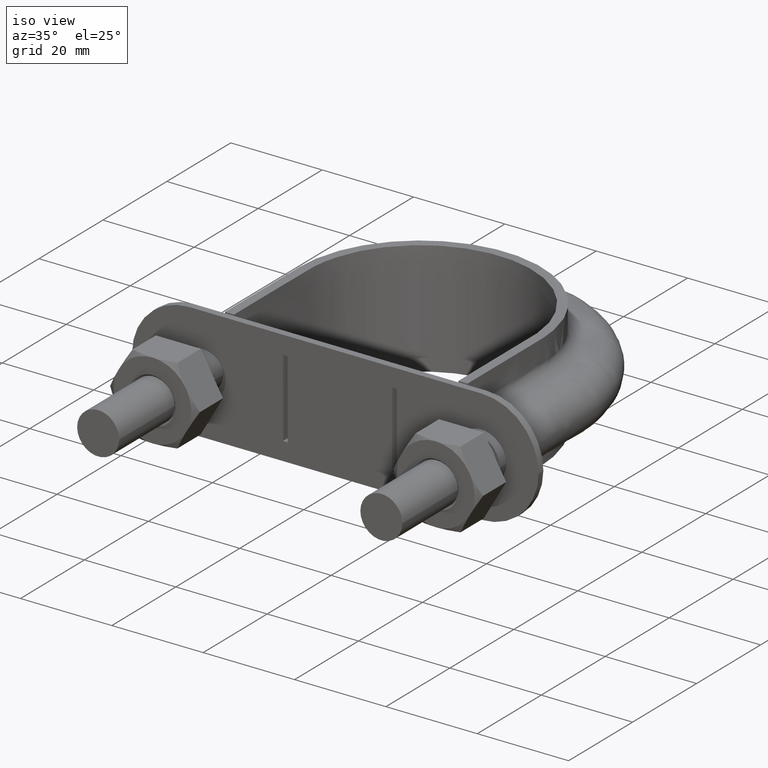
[diagram: clean part render]
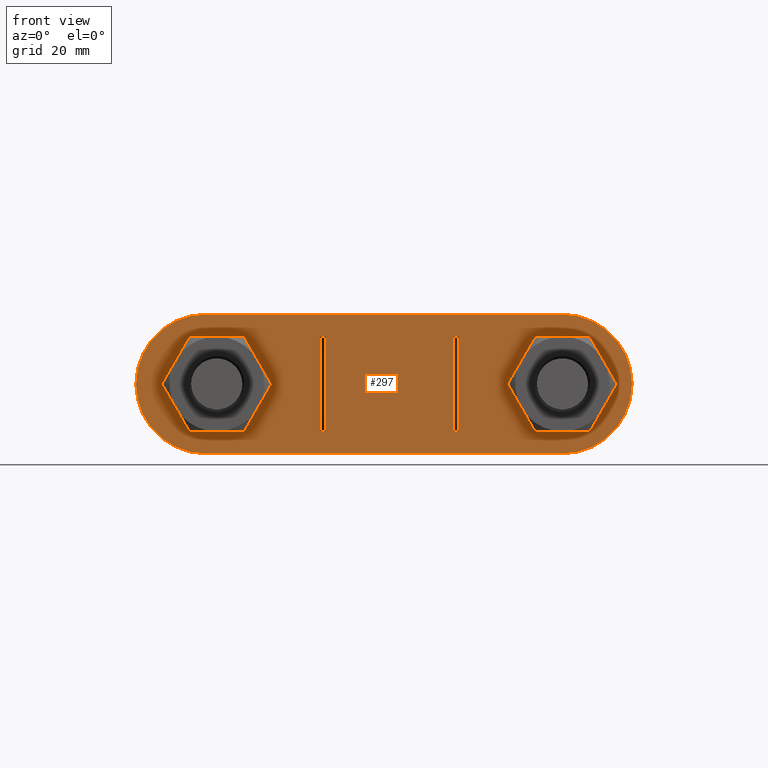
[diagram: tour spotlight — one face highlighted and labeled with its STEP entity id]
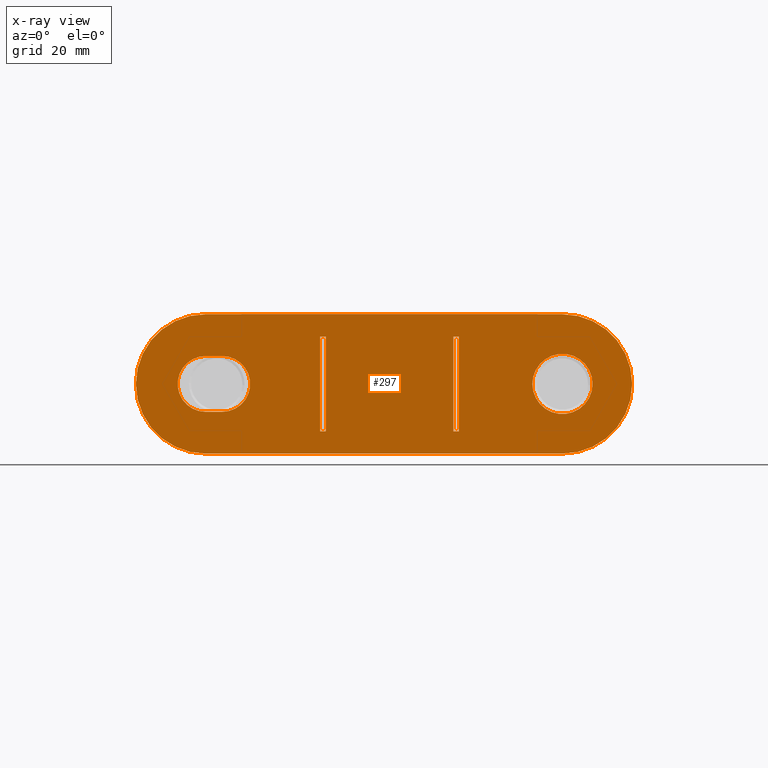
[diagram: x-ray of the same camera — body ghosted, this tour face saturated]
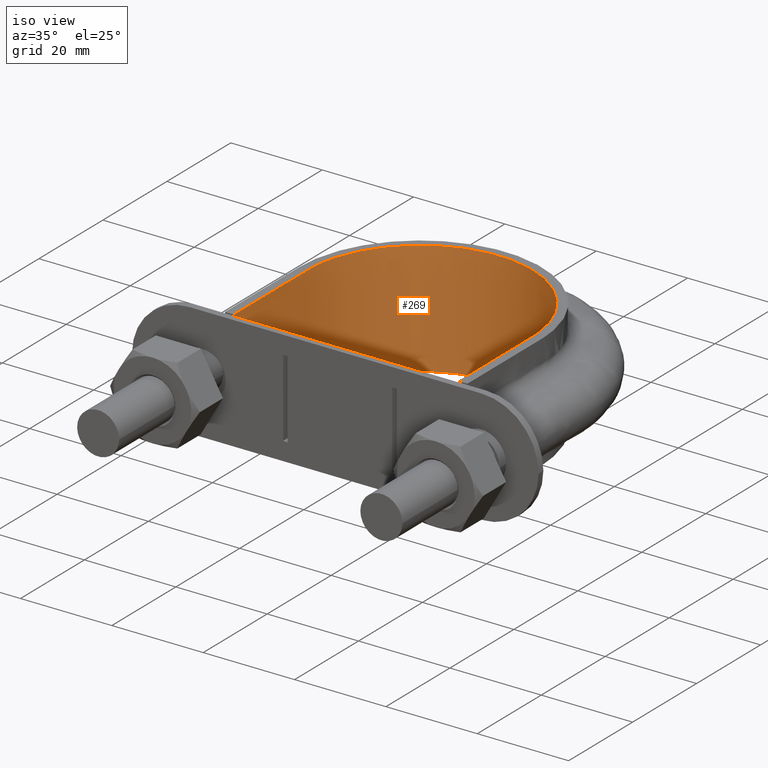
[diagram: tour spotlight — one face highlighted and labeled with its STEP entity id]
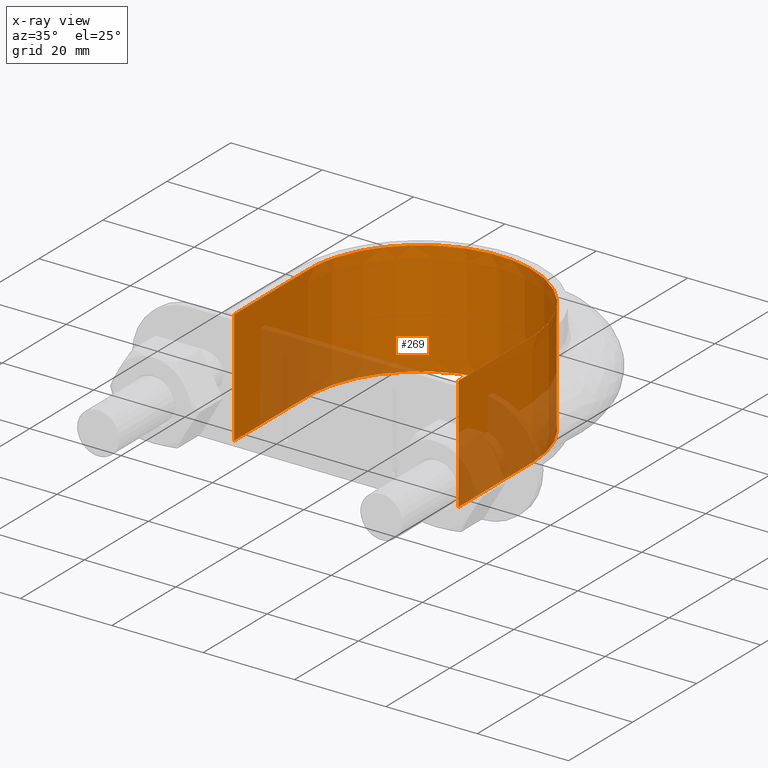
[diagram: x-ray of the same camera — body ghosted, this tour face saturated]
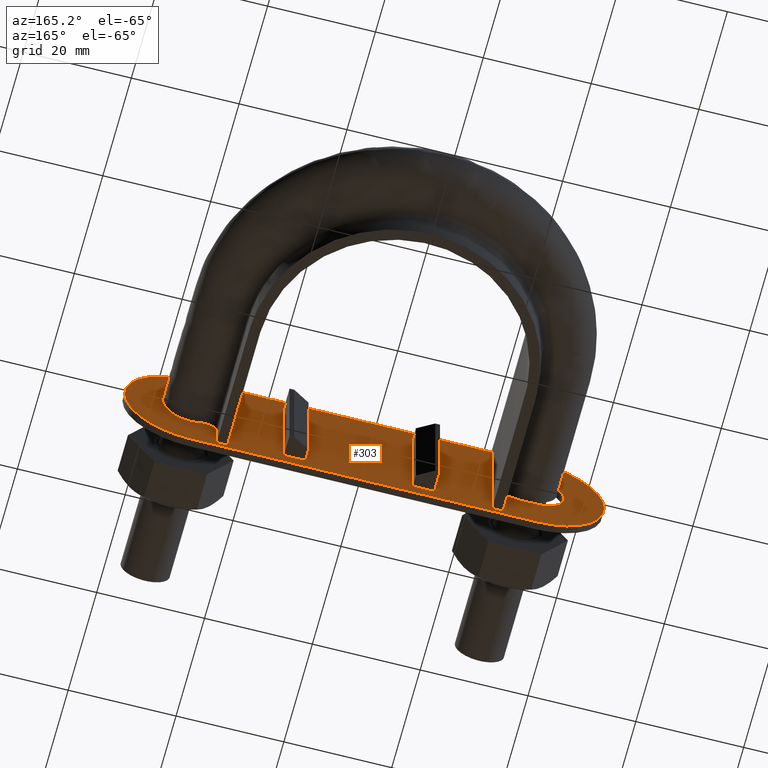
[diagram: tour spotlight — one face highlighted and labeled with its STEP entity id]
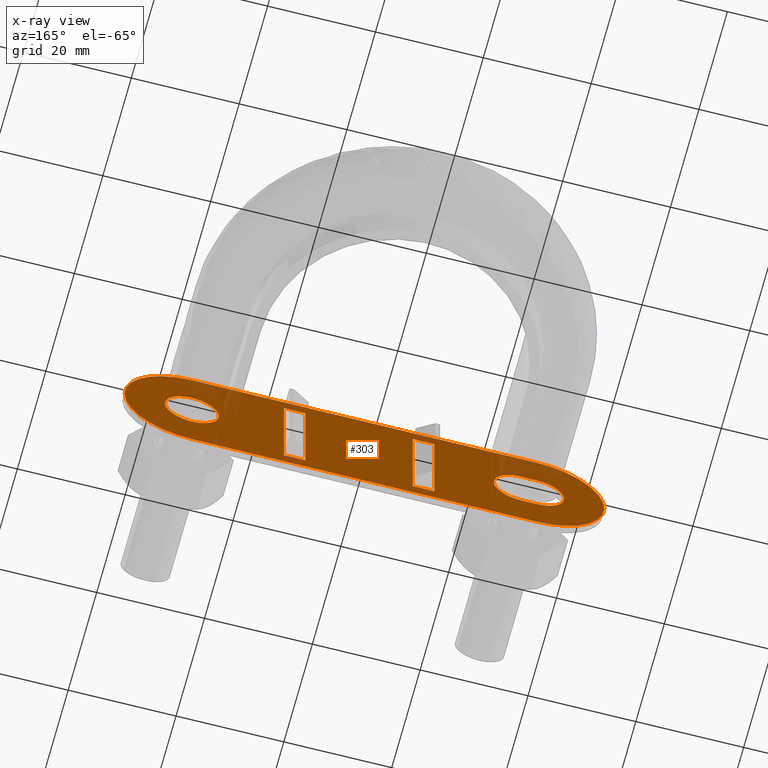
[diagram: x-ray of the same camera — body ghosted, this tour face saturated]
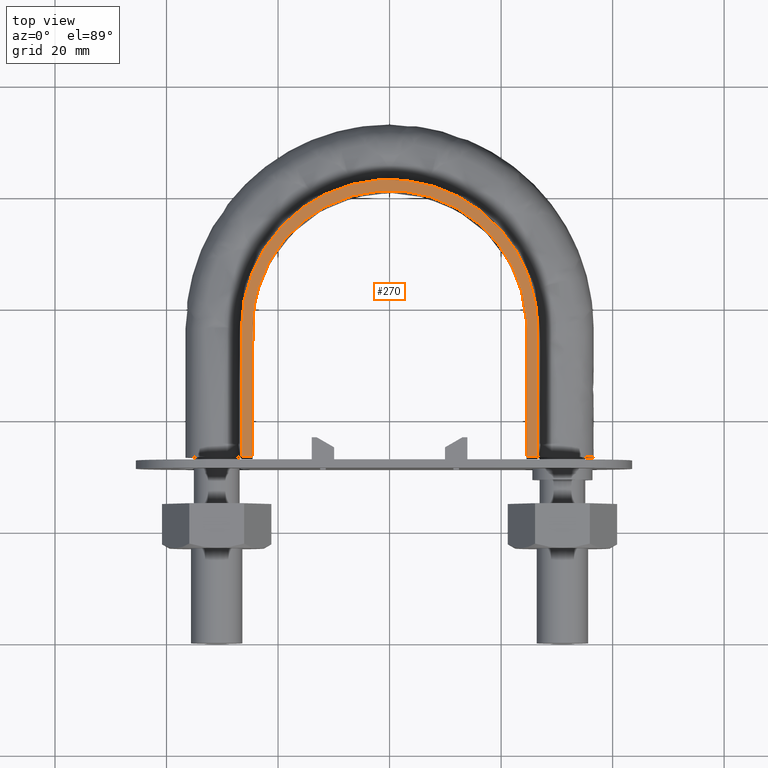
[diagram: tour spotlight — one face highlighted and labeled with its STEP entity id]
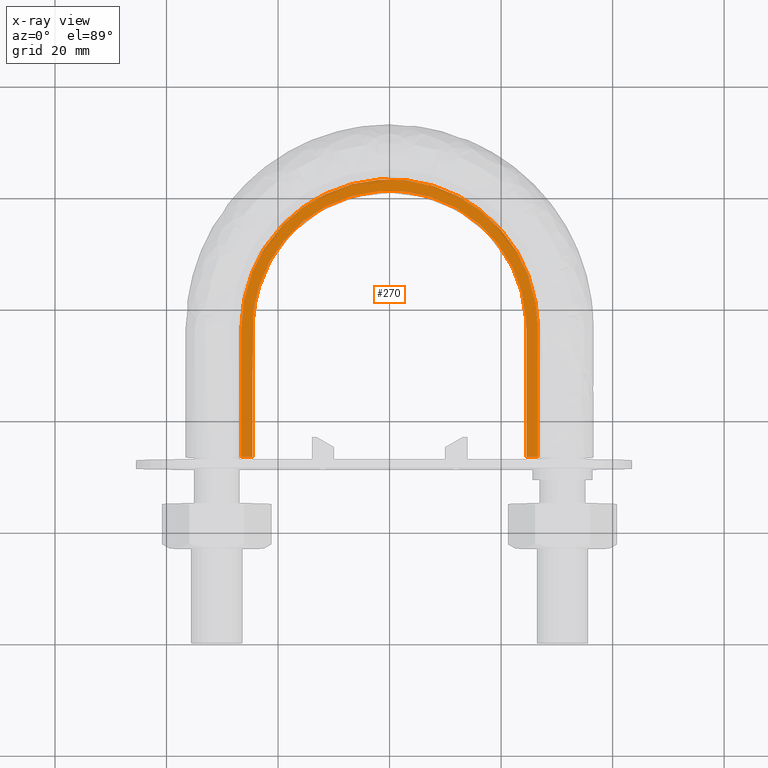
[diagram: x-ray of the same camera — body ghosted, this tour face saturated]
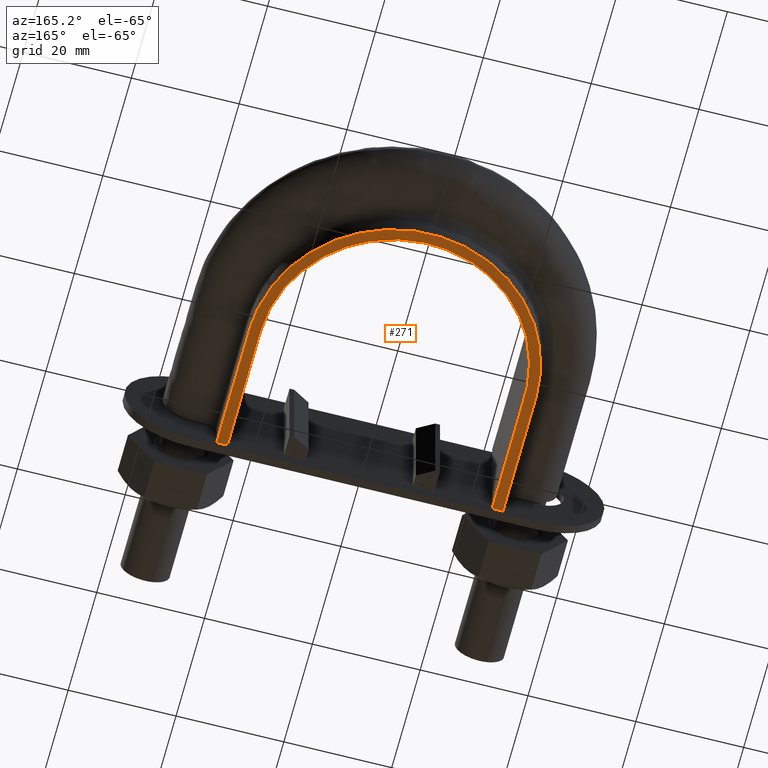
[diagram: tour spotlight — one face highlighted and labeled with its STEP entity id]
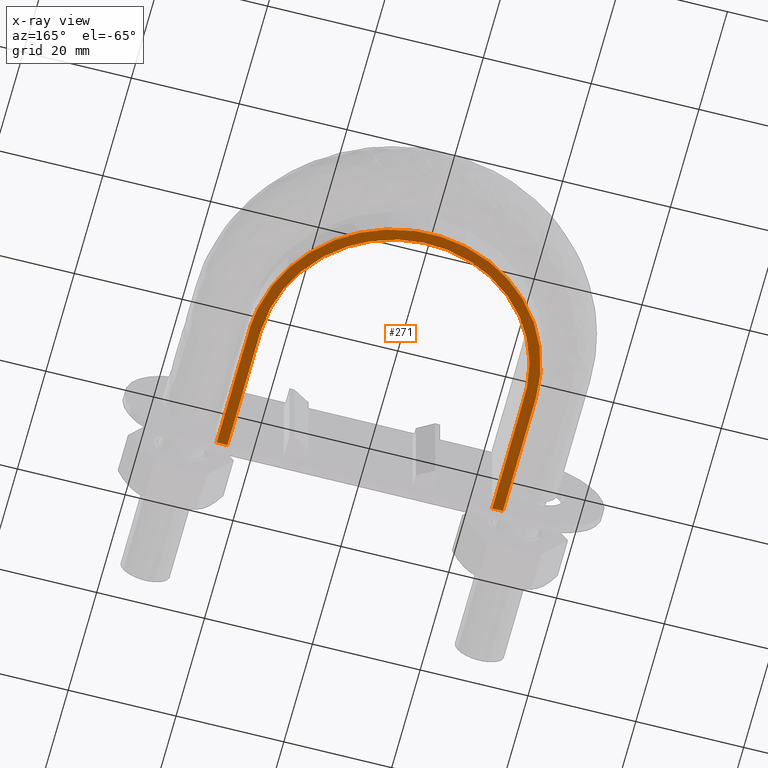
[diagram: x-ray of the same camera — body ghosted, this tour face saturated]
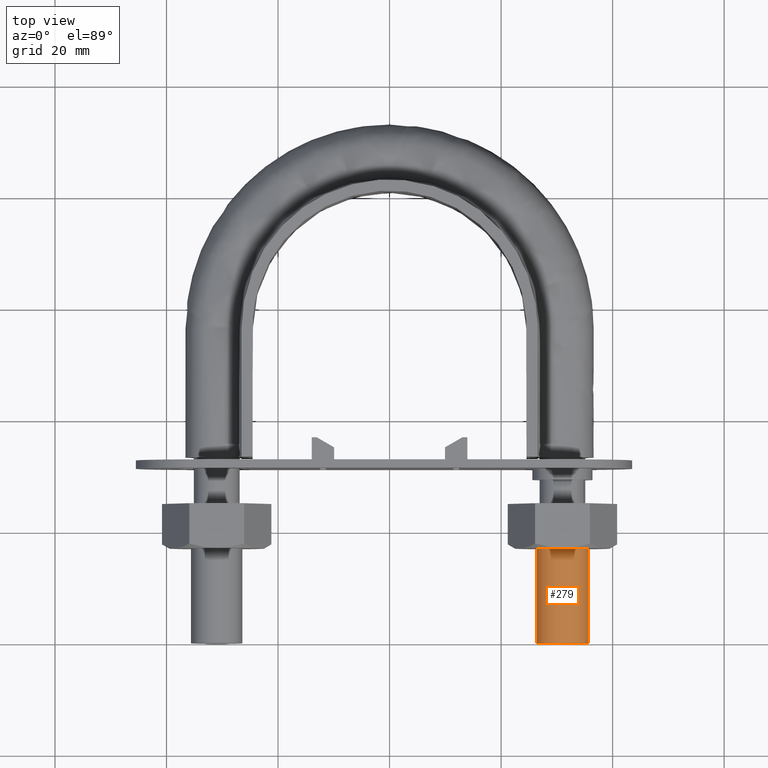
[diagram: tour spotlight — one face highlighted and labeled with its STEP entity id]
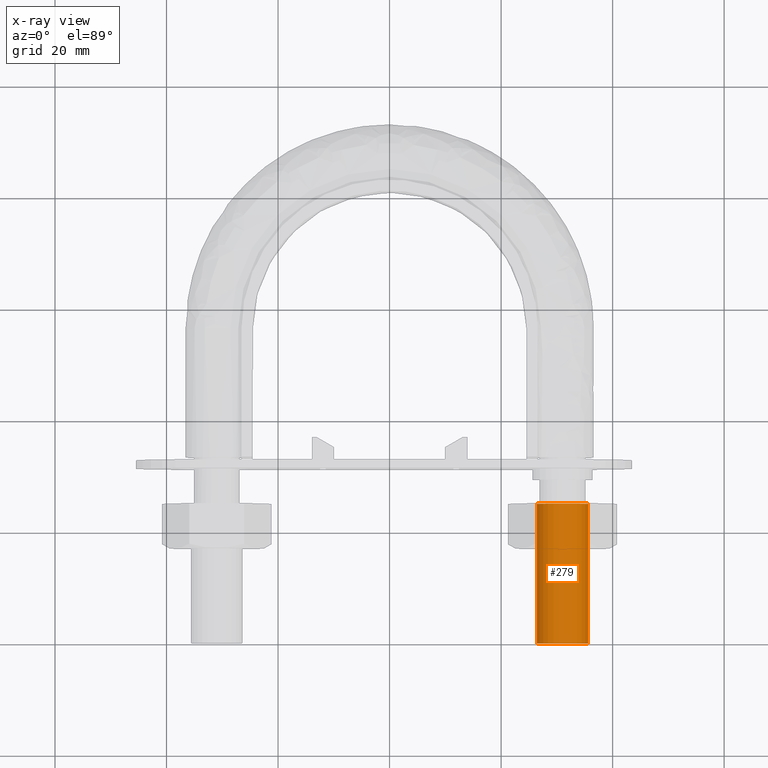
[diagram: x-ray of the same camera — body ghosted, this tour face saturated]
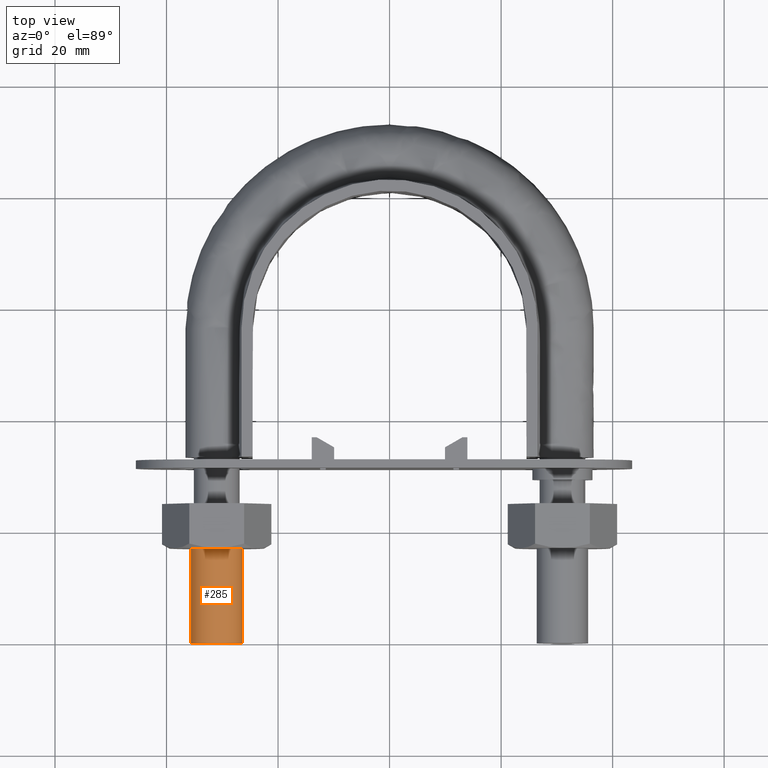
[diagram: tour spotlight — one face highlighted and labeled with its STEP entity id]
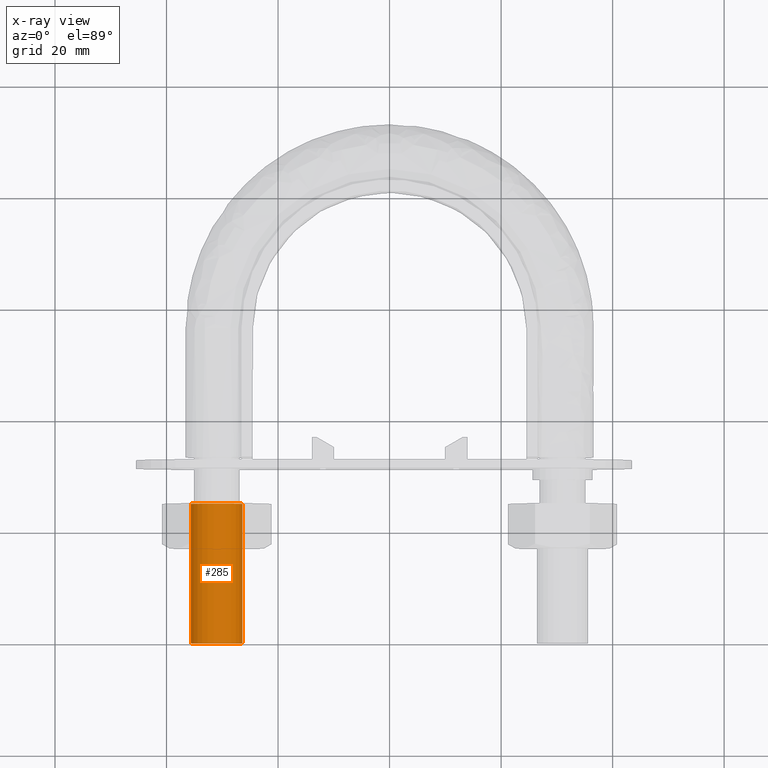
[diagram: x-ray of the same camera — body ghosted, this tour face saturated]
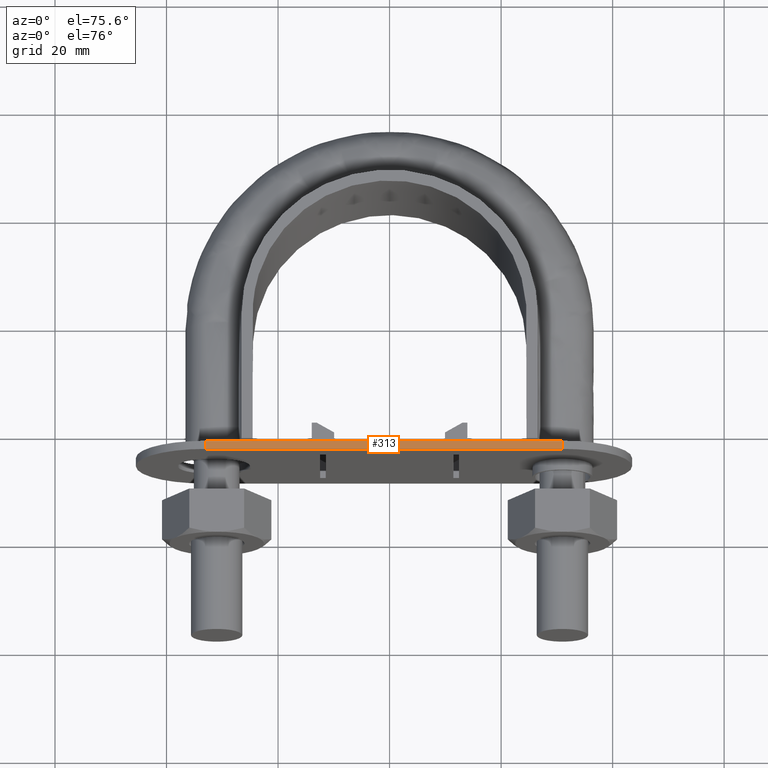
[diagram: tour spotlight — one face highlighted and labeled with its STEP entity id]
A machine part: a face-by-face anatomy tour. The part has 113 B-rep faces; the first image is the clean iso view, then the 8 largest visible faces are spotlighted one at a time (largest first), each with its STEP entity span.

Face 1 — front view, entity #297. An x-ray twin of the same camera follows (body ghosted, this face saturated) — the face is partly hidden behind the body. In plain terms, the highlighted planar face has unit normal (0, 1, 0).
Definition (entity closure, byte-faithful):
#297 = ADVANCED_FACE( '', ( #451, #452, #453, #454, #455 ), #456, .F. );
#451 = FACE_BOUND( '', #1533, .T. );
#452 = FACE_OUTER_BOUND( '', #1534, .T. );
#453 = FACE_BOUND( '', #1535, .T. );
#454 = FACE_BOUND( '', #1536, .T. );
#455 = FACE_BOUND( '', #1537, .T. );
#456 = PLANE( '', #1538 );
#1533 = EDGE_LOOP( '', ( #1912, #1913, #1914, #1915 ) );
#1534 = EDGE_LOOP( '', ( #1916, #1917, #1918, #1919, #1920, #1921 ) );
#1535 = EDGE_LOOP( '', ( #1922 ) );
#1536 = EDGE_LOOP( '', ( #1923, #1924, #1925, #1926 ) );
#1537 = EDGE_LOOP( '', ( #1927, #1928, #1929, #1930 ) );
#1538 = AXIS2_PLACEMENT_3D( '', #1931, #1932, #1933 );
#1912 = ORIENTED_EDGE( '', *, *, #2593, .F. );
#1913 = ORIENTED_EDGE( '', *, *, #2594, .T. );
#1914 = ORIENTED_EDGE( '', *, *, #2595, .T. );
#1915 = ORIENTED_EDGE( '', *, *, #2596, .F. );
#1916 = ORIENTED_EDGE( '', *, *, #2597, .F. );
#1917 = ORIENTED_EDGE( '', *, *, #2598, .F. );
#1918 = ORIENTED_EDGE( '', *, *, #2599, .F. );
#1919 = ORIENTED_EDGE( '', *, *, #2600, .F. );
#1920 = ORIENTED_EDGE( '', *, *, #2601, .F. );
#1921 = ORIENTED_EDGE( '', *, *, #2602, .F. );
#1922 = ORIENTED_EDGE( '', *, *, #2603, .T. );
#1923 = ORIENTED_EDGE( '', *, *, #2604, .F. );
#1924 = ORIENTED_EDGE( '', *, *, #2605, .F. );
#1925 = ORIENTED_EDGE( '', *, *, #2606, .F. );
#1926 = ORIENTED_EDGE( '', *, *, #2607, .F. );
#1927 = ORIENTED_EDGE( '', *, *, #2608, .T. );
#1928 = ORIENTED_EDGE( '', *, *, #2609, .T. );
#1929 = ORIENTED_EDGE( '', *, *, #2610, .F. );
#1930 = ORIENTED_EDGE( '', *, *, #2611, .F. );
#1931 = CARTESIAN_POINT( '', ( -33.0000000000000, 31.3000000000000, -2.74104934811529E-010 ) );
#1932 = DIRECTION( '', ( 2.69049844737294E-016, 1.00000000000000, 2.19103554241528E-016 ) );
#1933 = DIRECTION( '', ( -8.30656377015886E-012, -2.19103554239293E-016, 1.00000000000000 ) );
#2593 = EDGE_CURVE( '', #2863, #2864, #2865, .T. );
#2594 = EDGE_CURVE( '', #2863, #2866, #2867, .T. );
#2595 = EDGE_CURVE( '', #2866, #2868, #2869, .T. );
#2596 = EDGE_CURVE( '', #2864, #2868, #2870, .T. );
#2597 = EDGE_CURVE( '', #2871, #2872, #2873, .T. );
#2598 = EDGE_CURVE( '', #2874, #2871, #2875, .T. );
#2599 = EDGE_CURVE( '', #2876, #2874, #2877, .T. );
#2600 = EDGE_CURVE( '', #2878, #2876, #2879, .T. );
#2601 = EDGE_CURVE( '', #2880, #2878, #2881, .T. );
#2602 = EDGE_CURVE( '', #2872, #2880, #2882, .T. );
#2603 = EDGE_CURVE( '', #2883, #2883, #2884, .T. );
#2604 = EDGE_CURVE( '', #2885, #2886, #2887, .T. );
#2605 = EDGE_CURVE( '', #2888, #2885, #2889, .T. );
#2606 = EDGE_CURVE( '', #2890, #2888, #2891, .T. );
#2607 = EDGE_CURVE( '', #2886, #2890, #2892, .T. );
#2608 = EDGE_CURVE( '', #2893, #2894, #2895, .T. );
#2609 = EDGE_CURVE( '', #2894, #2896, #2897, .T. );
#2610 = EDGE_CURVE( '', #2898, #2896, #2899, .T. );
#2611 = EDGE_CURVE( '', #2893, #2898, #2900, .T. );
#2863 = VERTEX_POINT( '', #3501 );
#2864 = VERTEX_POINT( '', #3502 );
#2865 = LINE( '', #3503, #3504 );
#2866 = VERTEX_POINT( '', #3505 );
#2867 = LINE( '', #3506, #3507 );
#2868 = VERTEX_POINT( '', #3508 );
#2869 = LINE( '', #3509, #3510 );
#2870 = LINE( '', #3511, #3512 );
#2871 = VERTEX_POINT( '', #3513 );
#2872 = VERTEX_POINT( '', #3514 );
#2873 = CIRCLE( '', #3515, 12.5000000000000 );
#2874 = VERTEX_POINT( '', #3516 );
#2875 = CIRCLE( '', #3517, 12.5000000000000 );
#2876 = VERTEX_POINT( '', #3518 );
#2877 = LINE( '', #3519, #3520 );
#2878 = VERTEX_POINT( '', #3521 );
#2879 = CIRCLE( '', #3522, 12.5000000000000 );
#2880 = VERTEX_POINT( '', #3523 );
#2881 = CIRCLE( '', #3524, 12.5000000000000 );
#2882 = LINE( '', #3525, #3526 );
#2883 = VERTEX_POINT( '', #3527 );
#2884 = CIRCLE( '', #3528, 5.40000000000000 );
#2885 = VERTEX_POINT( '', #3529 );
#2886 = VERTEX_POINT( '', #3530 );
#2887 = CIRCLE( '', #3531, 5.00000000000000 );
#2888 = VERTEX_POINT( '', #3532 );
#2889 = LINE( '', #3533, #3534 );
#2890 = VERTEX_POINT( '', #3535 );
#2891 = CIRCLE( '', #3536, 5.00000000000000 );
#2892 = LINE( '', #3537, #3538 );
#2893 = VERTEX_POINT( '', #3539 );
#2894 = VERTEX_POINT( '', #3540 );
#2895 = LINE( '', #3541, #3542 );
#2896 = VERTEX_POINT( '', #3543 );
#2897 = LINE( '', #3544, #3545 );
#2898 = VERTEX_POINT( '', #3546 );
#2899 = LINE( '', #3547, #3548 );
#2900 = LINE( '', #3549, #3550 );
#3501 = CARTESIAN_POINT( '', ( -12.4499999999294, 31.3000000000000, -8.50000000010341 ) );
#3502 = CARTESIAN_POINT( '', ( -11.4499999999294, 31.3000000000000, -8.50000000009510 ) );
#3503 = CARTESIAN_POINT( '', ( -12.4499999999294, 31.3000000000000, -8.50000000010341 ) );
#3504 = VECTOR( '', #4131, 1000.00000000000 );
#3505 = CARTESIAN_POINT( '', ( -12.4500000000706, 31.3000000000000, 8.49999999989659 ) );
#3506 = CARTESIAN_POINT( '', ( -12.4499999999294, 31.3000000000000, -8.50000000010341 ) );
#3507 = VECTOR( '', #4132, 1000.00000000000 );
#3508 = CARTESIAN_POINT( '', ( -11.4500000000706, 31.3000000000000, 8.49999999990490 ) );
#3509 = CARTESIAN_POINT( '', ( -12.4500000000706, 31.3000000000000, 8.49999999989659 ) );
#3510 = VECTOR( '', #4133, 1000.00000000000 );
#3511 = CARTESIAN_POINT( '', ( -11.4499999999294, 31.3000000000000, -8.50000000009510 ) );
#3512 = VECTOR( '', #4134, 1000.00000000000 );
#3513 = CARTESIAN_POINT( '', ( -45.5000000000000, 31.3000000000000, -3.77940451385467E-010 ) );
#3514 = CARTESIAN_POINT( '', ( -33.0000000001038, 31.3000000000000, 12.4999999997259 ) );
#3515 = AXIS2_PLACEMENT_3D( '', #4135, #4136, #4137 );
#3516 = CARTESIAN_POINT( '', ( -32.9999999998962, 31.3000000000000, -12.5000000002741 ) );
#3517 = AXIS2_PLACEMENT_3D( '', #4138, #4139, #4140 );
#3518 = CARTESIAN_POINT( '', ( 31.0000000001038, 31.3000000000000, -12.4999999997425 ) );
#3519 = CARTESIAN_POINT( '', ( 31.0000000001039, 31.3000000000000, -12.4999999997425 ) );
#3520 = VECTOR( '', #4141, 1000.00000000000 );
#3521 = CARTESIAN_POINT( '', ( 43.5000000000000, 31.3000000000000, 3.61347193605624E-010 ) );
#3522 = AXIS2_PLACEMENT_3D( '', #4142, #4143, #4144 );
#3523 = CARTESIAN_POINT( '', ( 30.9999999998962, 31.3000000000000, 12.5000000002575 ) );
#3524 = AXIS2_PLACEMENT_3D( '', #4145, #4146, #4147 );
#3525 = CARTESIAN_POINT( '', ( -33.0000000001038, 31.3000000000000, 12.4999999997259 ) );
#3526 = VECTOR( '', #4148, 1000.00000000000 );
#3527 = CARTESIAN_POINT( '', ( 36.4000000000000, 31.3000000000000, 3.02372325560972E-010 ) );
#3528 = AXIS2_PLACEMENT_3D( '', #4149, #4150, #4151 );
#3529 = CARTESIAN_POINT( '', ( -33.0000000000415, 31.2999984999318, 4.99999999972590 ) );
#3530 = CARTESIAN_POINT( '', ( -32.9999999999585, 31.2999984999318, -5.00000000027410 ) );
#3531 = AXIS2_PLACEMENT_3D( '', #4152, #4153, #4154 );
#3532 = CARTESIAN_POINT( '', ( -30.0000000000415, 31.2999984999318, 4.99999999975082 ) );
#3533 = CARTESIAN_POINT( '', ( -30.0000000000415, 31.2999984999318, 4.99999999975082 ) );
#3534 = VECTOR( '', #4155, 1000.00000000000 );
#3535 = CARTESIAN_POINT( '', ( -29.9999999999585, 31.2999984999318, -5.00000000024918 ) );
#3536 = AXIS2_PLACEMENT_3D( '', #4156, #4157, #4158 );
#3537 = CARTESIAN_POINT( '', ( -32.9999999999585, 31.2999984999318, -5.00000000027410 ) );
#3538 = VECTOR( '', #4159, 1000.00000000000 );
#3539 = CARTESIAN_POINT( '', ( 12.4500000000706, 31.3000000000000, -8.49999999989657 ) );
#3540 = CARTESIAN_POINT( '', ( 11.4500000000706, 31.3000000000000, -8.49999999990488 ) );
#3541 = CARTESIAN_POINT( '', ( 12.4500000000706, 31.3000000000000, -8.49999999989657 ) );
#3542 = VECTOR( '', #4160, 1000.00000000000 );
#3543 = CARTESIAN_POINT( '', ( 11.4499999999294, 31.3000000000000, 8.50000000009512 ) );
#3544 = CARTESIAN_POINT( '', ( 11.4500000000706, 31.3000000000000, -8.49999999990488 ) );
#3545 = VECTOR( '', #4161, 1000.00000000000 );
#3546 = CARTESIAN_POINT( '', ( 12.4499999999294, 31.3000000000000, 8.50000000010343 ) );
#3547 = CARTESIAN_POINT( '', ( 12.4499999999294, 31.3000000000000, 8.50000000010343 ) );
#3548 = VECTOR( '', #4162, 1000.00000000000 );
#3549 = CARTESIAN_POINT( '', ( 12.4500000000706, 31.3000000000000, -8.49999999989657 ) );
#3550 = VECTOR( '', #4163, 1000.00000000000 );
#4131 = DIRECTION( '', ( 1.00000000000000, -2.69049844739114E-016, 8.30656377015886E-012 ) );
#4132 = DIRECTION( '', ( -8.30640340265816E-012, 5.86611048674801E-017, 1.00000000000000 ) );
#4133 = DIRECTION( '', ( 1.00000000000000, -2.69049844739114E-016, 8.30656377015886E-012 ) );
#4134 = DIRECTION( '', ( -8.30640340265816E-012, 5.86611048674801E-017, 1.00000000000000 ) );
#4135 = CARTESIAN_POINT( '', ( -33.0000000000000, 31.3000000000000, -2.74104934811529E-010 ) );
#4136 = DIRECTION( '', ( 2.69049844737294E-016, 1.00000000000000, 2.19103554241528E-016 ) );
#4137 = DIRECTION( '', ( -1.00000000000000, 2.69049844739114E-016, -8.30670254803694E-012 ) );
#4138 = CARTESIAN_POINT( '', ( -33.0000000000000, 31.3000000000000, -2.74101465364577E-010 ) );
#4139 = DIRECTION( '', ( 2.69049844737294E-016, 1.00000000000000, 2.19103554241528E-016 ) );
#4140 = DIRECTION( '', ( 8.30711888167118E-012, 2.19103554239293E-016, -1.00000000000000 ) );
#4141 = DIRECTION( '', ( -1.00000000000000, 2.69049844739114E-016, -8.30656377015886E-012 ) );
#4142 = CARTESIAN_POINT( '', ( 31.0000000000000, 31.3000000000000, 2.57518615925590E-010 ) );
#4143 = DIRECTION( '', ( 2.69049844737294E-016, 1.00000000000000, 2.19103554241528E-016 ) );
#4144 = DIRECTION( '', ( 1.00000000000000, -2.69049844739114E-016, 8.30670254803694E-012 ) );
#4145 = CARTESIAN_POINT( '', ( 31.0000000000000, 31.3000000000000, 2.57515146478638E-010 ) );
#4146 = DIRECTION( '', ( 2.69049844737294E-016, 1.00000000000000, 2.19103554241528E-016 ) );
#4147 = DIRECTION( '', ( -8.30656377015886E-012, -2.19103554239293E-016, 1.00000000000000 ) );
#4148 = DIRECTION( '', ( 1.00000000000000, -2.69049844739114E-016, 8.30656377015886E-012 ) );
#4149 = CARTESIAN_POINT( '', ( 31.0000000000000, 31.3000000000000, 2.57516881202114E-010 ) );
#4150 = DIRECTION( '', ( 2.69049844737294E-016, 1.00000000000000, 2.19103554241528E-016 ) );
#4151 = DIRECTION( '', ( 1.00000000000000, -2.69049844739114E-016, 8.30656377015886E-012 ) );
#4152 = CARTESIAN_POINT( '', ( -33.0000000000000, 31.2999984999318, -2.74103200088382E-010 ) );
#4153 = DIRECTION( '', ( -2.69049844737294E-016, -1.00000000000000, -2.19103554241528E-016 ) );
#4154 = DIRECTION( '', ( -8.30656377015886E-012, -2.19103554239293E-016, 1.00000000000000 ) );
#4155 = DIRECTION( '', ( -1.00000000000000, 2.69049844739114E-016, -8.30656377015886E-012 ) );
#4156 = CARTESIAN_POINT( '', ( -30.0000000000000, 31.2999984999318, -2.49183508777905E-010 ) );
#4157 = DIRECTION( '', ( -2.69049844737294E-016, -1.00000000000000, -2.19103554241528E-016 ) );
#4158 = DIRECTION( '', ( 8.30656377015886E-012, 2.19103554239293E-016, -1.00000000000000 ) );
#4159 = DIRECTION( '', ( 1.00000000000000, -2.69049844739114E-016, 8.30656377015886E-012 ) );
#4160 = DIRECTION( '', ( -1.00000000000000, 3.91510480121351E-016, -8.30656377015886E-012 ) );
#4161 = DIRECTION( '', ( -8.30672413765957E-012, 5.86611048674802E-017, 1.00000000000000 ) );
#4162 = DIRECTION( '', ( -1.00000000000000, 3.91510480121351E-016, -8.30656377015886E-012 ) );
#4163 = DIRECTION( '', ( -8.30672413765957E-012, 5.86611048674802E-017, 1.00000000000000 ) );

Face 2 — iso view, entity #269. An x-ray twin of the same camera follows (body ghosted, this face saturated) — the face is partly hidden behind the body. In plain terms, the highlighted face is a SurfaceOfExtrusion surface.
Definition (entity closure, byte-faithful):
#269 = ADVANCED_FACE( '', ( #387 ), #388, .T. );
#387 = FACE_OUTER_BOUND( '', #644, .T. );
#388 = SURFACE_OF_LINEAR_EXTRUSION( '', #645, #646 );
#644 = EDGE_LOOP( '', ( #1736, #1737, #1738, #1739 ) );
#645 = B_SPLINE_CURVE_WITH_KNOTS( '', 3, ( #1740, #1741, #1742, #1743, #1744, #1745, #1746, #1747, #1748, #1749, #1750, #1751, #1752, #1753, #1754, #1755, #1756 ), .UNSPECIFIED., .F., .F., ( 4, 3, 1, 1, 1, 1, 1, 1, 1, 3, 4 ), ( -7.85424354243542, -7.00000000000000, -6.50000000000000, -6.00000000000000, -5.00000000000000, -4.00000000000000, -3.00000000000000, -2.00000000000000, -1.50000000000000, -1.00000000000000, -0.145756457564576 ), .UNSPECIFIED. );
#646 = VECTOR( '', #1757, 1000.00000000000 );
#1736 = ORIENTED_EDGE( '', *, *, #2546, .T. );
#1737 = ORIENTED_EDGE( '', *, *, #2555, .T. );
#1738 = ORIENTED_EDGE( '', *, *, #2552, .F. );
#1739 = ORIENTED_EDGE( '', *, *, #2556, .T. );
#1740 = CARTESIAN_POINT( '', ( 24.5500000000000, 33.3000000000000, 12.5000100000910 ) );
#1741 = CARTESIAN_POINT( '', ( 24.5500000000000, 41.0166666666667, 12.5000100000910 ) );
#1742 = CARTESIAN_POINT( '', ( 24.5500000000000, 48.7333333333333, 12.5000100000910 ) );
#1743 = CARTESIAN_POINT( '', ( 24.5500000000000, 56.4500000000000, 12.5000100000910 ) );
#1744 = CARTESIAN_POINT( '', ( 24.5500000000000, 58.5780025041717, 12.5000100000910 ) );
#1745 = CARTESIAN_POINT( '', ( 23.9738358905282, 62.8798607773325, 12.5000100000910 ) );
#1746 = CARTESIAN_POINT( '', ( 20.6884777838097, 70.8633071998794, 12.5000100000910 ) );
#1747 = CARTESIAN_POINT( '', ( 12.8483754366917, 78.7059313144219, 12.5000100000910 ) );
#1748 = CARTESIAN_POINT( '', ( 1.69986719242917E-014, 82.1470343427890, 12.5000100000910 ) );
#1749 = CARTESIAN_POINT( '', ( -12.8483754366917, 78.7059313144219, 12.5000100000910 ) );
#1750 = CARTESIAN_POINT( '', ( -20.6884777838097, 70.8633071998795, 12.5000100000910 ) );
#1751 = CARTESIAN_POINT( '', ( -23.9738358905281, 62.8798607773325, 12.5000100000910 ) );
#1752 = CARTESIAN_POINT( '', ( -24.5500000000000, 58.5780025041717, 12.5000100000910 ) );
#1753 = CARTESIAN_POINT( '', ( -24.5500000000000, 56.4500000000000, 12.5000100000910 ) );
#1754 = CARTESIAN_POINT( '', ( -24.5500000000000, 48.7333333333333, 12.5000100000910 ) );
#1755 = CARTESIAN_POINT( '', ( -24.5500000000000, 41.0166666666667, 12.5000100000910 ) );
#1756 = CARTESIAN_POINT( '', ( -24.5500000000000, 33.3000000000000, 12.5000100000910 ) );
#1757 = DIRECTION( '', ( 0.000000000000000, 0.000000000000000, -1.00000000000000 ) );
#2546 = EDGE_CURVE( '', #2787, #2788, #2789, .T. );
#2552 = EDGE_CURVE( '', #2797, #2800, #2801, .T. );
#2555 = EDGE_CURVE( '', #2788, #2800, #2805, .F. );
#2556 = EDGE_CURVE( '', #2797, #2787, #2806, .T. );
#2787 = VERTEX_POINT( '', #3194 );
#2788 = VERTEX_POINT( '', #3195 );
#2789 = LINE( '', #3196, #3197 );
#2797 = VERTEX_POINT( '', #3246 );
#2800 = VERTEX_POINT( '', #3250 );
#2801 = LINE( '', #3251, #3252 );
#2805 = B_SPLINE_CURVE_WITH_KNOTS( '', 3, ( #3287, #3288, #3289, #3290, #3291, #3292, #3293, #3294, #3295, #3296, #3297, #3298, #3299, #3300, #3301, #3302, #3303 ), .UNSPECIFIED., .F., .F., ( 4, 3, 1, 1, 1, 1, 1, 1, 1, 3, 4 ), ( -7.85424354243542, -7.00000000000000, -6.50000000000000, -6.00000000000000, -5.00000000000000, -4.00000000000000, -3.00000000000000, -2.00000000000000, -1.50000000000000, -1.00000000000000, -0.145756457564576 ), .UNSPECIFIED. );
#2806 = B_SPLINE_CURVE_WITH_KNOTS( '', 3, ( #3304, #3305, #3306, #3307, #3308, #3309, #3310, #3311, #3312, #3313, #3314, #3315, #3316, #3317, #3318, #3319, #3320, #3321, #3322, #3323, #3324, #3325, #3326, #3327, #3328, #3329, #3330, #3331, #3332, #3333, #3334, #3335, #3336, #3337, #3338, #3339, #3340, #3341, #3342, #3343, #3344, #3345, #3346, #3347, #3348, #3349, #3350, #3351, #3352, #3353, #3354, #3355, #3356, #3357, #3358, #3359, #3360, #3361, #3362, #3363, #3364, #3365, #3366, #3367, #3368, #3369, #3370 ), .UNSPECIFIED., .F., .F., ( 4, 1, 2, 2, 2, 2, 2, 2, 2, 2, 2, 2, 2, 2, 2, 2, 2, 2, 2, 2, 2, 2, 2, 2, 2, 2, 2, 2, 2, 2, 2, 2, 1, 1, 4 ), ( 6.93889390390723E-018, 0.0154145326467006, 0.0231217989700509, 0.0250486155508884, 0.0269754321317260, 0.0308290652934011, 0.0346826984550763, 0.0366095150359138, 0.0385363316167514, 0.0423899647784265, 0.0443167813592640, 0.0462435979401016, 0.0500972311017767, 0.0520240476826142, 0.0539508642634518, 0.0578044974251269, 0.0597313140059645, 0.0616581305868021, 0.0655117637484772, 0.0674385803293148, 0.0693653969101523, 0.0732190300718275, 0.0751458466526650, 0.0770726632335026, 0.0809262963951777, 0.0828531129760153, 0.0847799295568528, 0.0924871958802030, 0.0944140124610406, 0.0963408290418781, 0.100194462203553, 0.102121278784391, 0.104048095365228, 0.107901728526903, 0.123316261173604 ), .UNSPECIFIED. );
#3194 = CARTESIAN_POINT( '', ( -24.5500000000000, 33.3000000000000, 12.5000000000000 ) );
#3195 = CARTESIAN_POINT( '', ( -24.5500000000000, 33.3000000000000, -12.5000000000000 ) );
#3196 = CARTESIAN_POINT( '', ( -24.5500000000000, 33.3000000000000, 12.5000100000910 ) );
#3197 = VECTOR( '', #4065, 1000.00000000000 );
#3246 = CARTESIAN_POINT( '', ( 24.5500000000000, 33.3000000000000, 12.5000000000000 ) );
#3250 = CARTESIAN_POINT( '', ( 24.5500000000000, 33.3000000000000, -12.5000000000000 ) );
#3251 = CARTESIAN_POINT( '', ( 24.5500000000000, 33.3000000000000, 12.5000100000910 ) );
#3252 = VECTOR( '', #4069, 1000.00000000000 );
#3287 = CARTESIAN_POINT( '', ( 24.5500000000000, 33.3000000000000, -12.5000000000000 ) );
#3288 = CARTESIAN_POINT( '', ( 24.5500000000000, 41.0166666666667, -12.5000000000000 ) );
#3289 = CARTESIAN_POINT( '', ( 24.5500000000000, 48.7333333333333, -12.5000000000000 ) );
#3290 = CARTESIAN_POINT( '', ( 24.5500000000000, 56.4500000000000, -12.5000000000000 ) );
#3291 = CARTESIAN_POINT( '', ( 24.5500000000000, 58.5780025041717, -12.5000000000000 ) );
#3292 = CARTESIAN_POINT( '', ( 23.9738358905282, 62.8798607773325, -12.5000000000000 ) );
#3293 = CARTESIAN_POINT( '', ( 20.6884777838097, 70.8633071998794, -12.5000000000000 ) );
#3294 = CARTESIAN_POINT( '', ( 12.8483754366917, 78.7059313144219, -12.5000000000000 ) );
#3295 = CARTESIAN_POINT( '', ( 1.69986719242917E-014, 82.1470343427890, -12.5000000000000 ) );
#3296 = CARTESIAN_POINT( '', ( -12.8483754366917, 78.7059313144219, -12.5000000000000 ) );
#3297 = CARTESIAN_POINT( '', ( -20.6884777838097, 70.8633071998795, -12.5000000000000 ) );
#3298 = CARTESIAN_POINT( '', ( -23.9738358905281, 62.8798607773325, -12.5000000000000 ) );
#3299 = CARTESIAN_POINT( '', ( -24.5500000000000, 58.5780025041717, -12.5000000000000 ) );
#3300 = CARTESIAN_POINT( '', ( -24.5500000000000, 56.4500000000000, -12.5000000000000 ) );
#3301 = CARTESIAN_POINT( '', ( -24.5500000000000, 48.7333333333333, -12.5000000000000 ) );
#3302 = CARTESIAN_POINT( '', ( -24.5500000000000, 41.0166666666667, -12.5000000000000 ) );
#3303 = CARTESIAN_POINT( '', ( -24.5500000000000, 33.3000000000000, -12.5000000000000 ) );
#3304 = CARTESIAN_POINT( '', ( 24.5500000000000, 33.3000000000000, 12.5000000000000 ) );
#3305 = CARTESIAN_POINT( '', ( 24.5500000000000, 38.4384221999800, 12.5000000000000 ) );
#3306 = CARTESIAN_POINT( '', ( 24.5500000000000, 46.1460554999500, 12.5000000000000 ) );
#3307 = CARTESIAN_POINT( '', ( 24.5500000000000, 53.8536887999200, 12.5000000000000 ) );
#3308 = CARTESIAN_POINT( '', ( 24.5500000000000, 57.0652026749075, 12.5000000000000 ) );
#3309 = CARTESIAN_POINT( '', ( 24.5252751330927, 57.7072641688935, 12.5000000000000 ) );
#3310 = CARTESIAN_POINT( '', ( 24.4234462537603, 58.9908760077758, 12.5000000000000 ) );
#3311 = CARTESIAN_POINT( '', ( 24.3467657946690, 59.6342202589336, 12.5000000000000 ) );
#3312 = CARTESIAN_POINT( '', ( 24.0418819320212, 61.5512040485105, 12.5000000000000 ) );
#3313 = CARTESIAN_POINT( '', ( 23.7423938741594, 62.7980756143651, 12.5000000000000 ) );
#3314 = CARTESIAN_POINT( '', ( 22.9567434107525, 65.2314557302550, 12.5000000000000 ) );
#3315 = CARTESIAN_POINT( '', ( 22.4705596365818, 66.4179573705316, 12.5000000000000 ) );
#3316 = CARTESIAN_POINT( '', ( 21.5925627875953, 68.1496193486760, 12.5000000000000 ) );
#3317 = CARTESIAN_POINT( '', ( 21.2766071075013, 68.7149736051725, 12.5000000000000 ) );
#3318 = CARTESIAN_POINT( '', ( 20.6053719022684, 69.8105348664257, 12.5000000000000 ) );
#3319 = CARTESIAN_POINT( '', ( 20.2492833691970, 70.3426982596920, 12.5000000000000 ) );
#3320 = CARTESIAN_POINT( '', ( 19.1215068537777, 71.8937876646727, 12.5000000000000 ) );
#3321 = CARTESIAN_POINT( '', ( 18.2907926568853, 72.8676826796255, 12.5000000000000 ) );
#3322 = CARTESIAN_POINT( '', ( 16.9250762587395, 74.2372481605127, 12.5000000000000 ) );
#3323 = CARTESIAN_POINT( '', ( 16.4483141734126, 74.6794580763296, 12.5000000000000 ) );
#3324 = CARTESIAN_POINT( '', ( 15.4703087185621, 75.5179842065182, 12.5000000000000 ) );
#3325 = CARTESIAN_POINT( '', ( 14.9674075928234, 75.9161548866917, 12.5000000000000 ) );
#3326 = CARTESIAN_POINT( '', ( 13.4174319314452, 77.0480315871901, 12.5000000000000 ) );
#3327 = CARTESIAN_POINT( '', ( 12.3291014903936, 77.7191271240917, 12.5000000000000 ) );
#3328 = CARTESIAN_POINT( '', ( 10.6113550739498, 78.5963928065052, 12.5000000000000 ) );
#3329 = CARTESIAN_POINT( '', ( 10.0221200459752, 78.8683847934331, 12.5000000000000 ) );
#3330 = CARTESIAN_POINT( '', ( 8.82789979738713, 79.3633140784713, 12.5000000000000 ) );
#3331 = CARTESIAN_POINT( '', ( 8.22453257139356, 79.5858617099620, 12.5000000000000 ) );
#3332 = CARTESIAN_POINT( '', ( 6.39627757875420, 80.1812145309662, 12.5000000000000 ) );
#3333 = CARTESIAN_POINT( '', ( 5.15338195845830, 80.4823089013905, 12.5000000000000 ) );
#3334 = CARTESIAN_POINT( '', ( 3.25266287101840, 80.7890954282830, 12.5000000000000 ) );
#3335 = CARTESIAN_POINT( '', ( 2.61299113566845, 80.8670713549403, 12.5000000000000 ) );
#3336 = CARTESIAN_POINT( '', ( 1.32093241036632, 80.9723885607186, 12.5000000000000 ) );
#3337 = CARTESIAN_POINT( '', ( 0.676406080425041, 80.9990466751685, 12.5000000000000 ) );
#3338 = CARTESIAN_POINT( '', ( -1.24870371014290, 81.0018313487211, 12.5000000000000 ) );
#3339 = CARTESIAN_POINT( '', ( -2.52265182528389, 80.9014678182981, 12.5000000000000 ) );
#3340 = CARTESIAN_POINT( '', ( -4.41989760294863, 80.6031174963141, 12.5000000000000 ) );
#3341 = CARTESIAN_POINT( '', ( -5.05001948103531, 80.4788821105621, 12.5000000000000 ) );
#3342 = CARTESIAN_POINT( '', ( -6.30559148152663, 80.1799222321459, 12.5000000000000 ) );
#3343 = CARTESIAN_POINT( '', ( -6.93138081059488, 80.0048019462484, 12.5000000000000 ) );
#3344 = CARTESIAN_POINT( '', ( -8.76889753233643, 79.4125614462542, 12.5000000000000 ) );
#3345 = CARTESIAN_POINT( '', ( -9.95225725658830, 78.9267801345634, 12.5000000000000 ) );
#3346 = CARTESIAN_POINT( '', ( -11.6646188489648, 78.0612380840055, 12.5000000000000 ) );
#3347 = CARTESIAN_POINT( '', ( -12.2248697137770, 77.7497158527538, 12.5000000000000 ) );
#3348 = CARTESIAN_POINT( '', ( -13.3236776153922, 77.0792985269674, 12.5000000000000 ) );
#3349 = CARTESIAN_POINT( '', ( -13.8646027205756, 76.7187643121761, 12.5000000000000 ) );
#3350 = CARTESIAN_POINT( '', ( -15.4323331862349, 75.5816103428784, 12.5000000000000 ) );
#3351 = CARTESIAN_POINT( '', ( -16.4066904175185, 74.7499313198934, 12.5000000000000 ) );
#3352 = CARTESIAN_POINT( '', ( -17.7664797273136, 73.3966709647585, 12.5000000000000 ) );
#3353 = CARTESIAN_POINT( '', ( -18.2026751411942, 72.9278462929921, 12.5000000000000 ) );
#3354 = CARTESIAN_POINT( '', ( -19.0403725195660, 71.9541411916241, 12.5000000000000 ) );
#3355 = CARTESIAN_POINT( '', ( -19.4425779981798, 71.4483024401624, 12.5000000000000 ) );
#3356 = CARTESIAN_POINT( '', ( -21.3557319354796, 68.8353834350349, 12.5000000000000 ) );
#3357 = CARTESIAN_POINT( '', ( -22.5176023500941, 66.5595033352519, 12.5000000000000 ) );
#3358 = CARTESIAN_POINT( '', ( -23.5216696114527, 63.4890361381941, 12.5000000000000 ) );
#3359 = CARTESIAN_POINT( '', ( -23.6990122608683, 62.8647462965356, 12.5000000000000 ) );
#3360 = CARTESIAN_POINT( '', ( -24.0024245935730, 61.6147239867792, 12.5000000000000 ) );
#3361 = CARTESIAN_POINT( '', ( -24.1294131227665, 60.9864283058243, 12.5000000000000 ) );
#3362 = CARTESIAN_POINT( '', ( -24.4371992964721, 59.0918170449201, 12.5000000000000 ) );
#3363 = CARTESIAN_POINT( '', ( -24.5457173567177, 57.8158968179808, 12.5000000000000 ) );
#3364 = CARTESIAN_POINT( '', ( -24.5519571685428, 55.8812155098233, 12.5000000000000 ) );
#3365 = CARTESIAN_POINT( '', ( -24.5500000000000, 55.2357852822296, 12.5000000000000 ) );
#3366 = CARTESIAN_POINT( '', ( -24.5500000000000, 53.9454449715102, 12.5000000000000 ) );
#3367 = CARTESIAN_POINT( '', ( -24.5500000000000, 52.0099345054311, 12.5000000000000 ) );
#3368 = CARTESIAN_POINT( '', ( -24.5500000000000, 44.9130627964746, 12.5000000000000 ) );
#3369 = CARTESIAN_POINT( '', ( -24.5500000000000, 38.4613612428775, 12.5000000000000 ) );
#3370 = CARTESIAN_POINT( '', ( -24.5500000000000, 33.3000000000001, 12.5000000000000 ) );
#4065 = DIRECTION( '', ( 0.000000000000000, 0.000000000000000, -1.00000000000000 ) );
#4069 = DIRECTION( '', ( 0.000000000000000, 0.000000000000000, -1.00000000000000 ) );

Face 3 — auxiliary view, entity #303. An x-ray twin of the same camera follows (body ghosted, this face saturated) — the face is partly hidden behind the body. In plain terms, the highlighted planar face has unit normal (0, 1, 0).
Definition (entity closure, byte-faithful):
#303 = ADVANCED_FACE( '', ( #467, #468, #469, #470, #471 ), #472, .T. );
#467 = FACE_BOUND( '', #1549, .T. );
#468 = FACE_OUTER_BOUND( '', #1550, .T. );
#469 = FACE_BOUND( '', #1551, .T. );
#470 = FACE_BOUND( '', #1552, .T. );
#471 = FACE_BOUND( '', #1553, .T. );
#472 = PLANE( '', #1554 );
#1549 = EDGE_LOOP( '', ( #1969, #1970, #1971, #1972 ) );
#1550 = EDGE_LOOP( '', ( #1973, #1974, #1975, #1976, #1977, #1978 ) );
#1551 = EDGE_LOOP( '', ( #1979 ) );
#1552 = EDGE_LOOP( '', ( #1980, #1981, #1982, #1983 ) );
#1553 = EDGE_LOOP( '', ( #1984, #1985, #1986, #1987 ) );
#1554 = AXIS2_PLACEMENT_3D( '', #1988, #1989, #1990 );
#1969 = ORIENTED_EDGE( '', *, *, #2625, .T. );
#1970 = ORIENTED_EDGE( '', *, *, #2626, .T. );
#1971 = ORIENTED_EDGE( '', *, *, #2627, .F. );
#1972 = ORIENTED_EDGE( '', *, *, #2628, .F. );
#1973 = ORIENTED_EDGE( '', *, *, #2612, .T. );
#1974 = ORIENTED_EDGE( '', *, *, #2629, .T. );
#1975 = ORIENTED_EDGE( '', *, *, #2630, .T. );
#1976 = ORIENTED_EDGE( '', *, *, #2631, .T. );
#1977 = ORIENTED_EDGE( '', *, *, #2632, .T. );
#1978 = ORIENTED_EDGE( '', *, *, #2633, .T. );
#1979 = ORIENTED_EDGE( '', *, *, #2634, .F. );
#1980 = ORIENTED_EDGE( '', *, *, #2635, .F. );
#1981 = ORIENTED_EDGE( '', *, *, #2622, .F. );
#1982 = ORIENTED_EDGE( '', *, *, #2636, .F. );
#1983 = ORIENTED_EDGE( '', *, *, #2637, .F. );
#1984 = ORIENTED_EDGE( '', *, *, #2638, .F. );
#1985 = ORIENTED_EDGE( '', *, *, #2639, .T. );
#1986 = ORIENTED_EDGE( '', *, *, #2640, .T. );
#1987 = ORIENTED_EDGE( '', *, *, #2641, .F. );
#1988 = CARTESIAN_POINT( '', ( -33.0000000000000, 32.8000000000000, -2.74104606156198E-010 ) );
#1989 = DIRECTION( '', ( 2.69049844737294E-016, 1.00000000000000, 2.19103554241528E-016 ) );
#1990 = DIRECTION( '', ( -8.30656377015886E-012, -2.19103554239293E-016, 1.00000000000000 ) );
#2612 = EDGE_CURVE( '', #2901, #2902, #2903, .T. );
#2622 = EDGE_CURVE( '', #2917, #2918, #2919, .T. );
#2625 = EDGE_CURVE( '', #2922, #2923, #2924, .T. );
#2626 = EDGE_CURVE( '', #2923, #2925, #2926, .T. );
#2627 = EDGE_CURVE( '', #2927, #2925, #2928, .T. );
#2628 = EDGE_CURVE( '', #2922, #2927, #2929, .T. );
#2629 = EDGE_CURVE( '', #2902, #2930, #2931, .T. );
#2630 = EDGE_CURVE( '', #2930, #2932, #2933, .T. );
#2631 = EDGE_CURVE( '', #2932, #2934, #2935, .T. );
#2632 = EDGE_CURVE( '', #2934, #2936, #2937, .T. );
#2633 = EDGE_CURVE( '', #2936, #2901, #2938, .T. );
#2634 = EDGE_CURVE( '', #2939, #2939, #2940, .T. );
#2635 = EDGE_CURVE( '', #2918, #2941, #2942, .F. );
#2636 = EDGE_CURVE( '', #2943, #2917, #2944, .F. );
#2637 = EDGE_CURVE( '', #2941, #2943, #2945, .T. );
#2638 = EDGE_CURVE( '', #2946, #2947, #2948, .T. );
#2639 = EDGE_CURVE( '', #2946, #2949, #2950, .T. );
#2640 = EDGE_CURVE( '', #2949, #2951, #2952, .T. );
#2641 = EDGE_CURVE( '', #2947, #2951, #2953, .T. );
#2901 = VERTEX_POINT( '', #3551 );
#2902 = VERTEX_POINT( '', #3552 );
#2903 = CIRCLE( '', #3553, 12.5000000000000 );
#2917 = VERTEX_POINT( '', #3576 );
#2918 = VERTEX_POINT( '', #3577 );
#2919 = LINE( '', #3578, #3579 );
#2922 = VERTEX_POINT( '', #3584 );
#2923 = VERTEX_POINT( '', #3585 );
#2924 = LINE( '', #3586, #3587 );
#2925 = VERTEX_POINT( '', #3588 );
#2926 = LINE( '', #3589, #3590 );
#2927 = VERTEX_POINT( '', #3591 );
#2928 = LINE( '', #3592, #3593 );
#2929 = LINE( '', #3594, #3595 );
#2930 = VERTEX_POINT( '', #3596 );
#2931 = LINE( '', #3597, #3598 );
#2932 = VERTEX_POINT( '', #3599 );
#2933 = CIRCLE( '', #3600, 12.5000000000000 );
#2934 = VERTEX_POINT( '', #3601 );
#2935 = CIRCLE( '', #3602, 12.5000000000000 );
#2936 = VERTEX_POINT( '', #3603 );
#2937 = LINE( '', #3604, #3605 );
#2938 = CIRCLE( '', #3606, 12.5000000000000 );
#2939 = VERTEX_POINT( '', #3607 );
#2940 = CIRCLE( '', #3608, 5.00000000000000 );
#2941 = VERTEX_POINT( '', #3609 );
#2942 = CIRCLE( '', #3610, 5.00000000000000 );
#2943 = VERTEX_POINT( '', #3611 );
#2944 = CIRCLE( '', #3612, 5.00000000000000 );
#2945 = LINE( '', #3613, #3614 );
#2946 = VERTEX_POINT( '', #3615 );
#2947 = VERTEX_POINT( '', #3616 );
#2948 = LINE( '', #3617, #3618 );
#2949 = VERTEX_POINT( '', #3619 );
#2950 = LINE( '', #3620, #3621 );
#2951 = VERTEX_POINT( '', #3622 );
#2952 = LINE( '', #3623, #3624 );
#2953 = LINE( '', #3625, #3626 );
#3551 = CARTESIAN_POINT( '', ( -45.5000000000000, 32.8000000000000, -3.77940122730136E-010 ) );
#3552 = CARTESIAN_POINT( '', ( -33.0000000001038, 32.8000000000000, 12.4999999997259 ) );
#3553 = AXIS2_PLACEMENT_3D( '', #4164, #4165, #4166 );
#3576 = CARTESIAN_POINT( '', ( -29.9999999999585, 32.8000000000000, -5.00000000024918 ) );
#3577 = CARTESIAN_POINT( '', ( -32.9999999999585, 32.8000000000000, -5.00000000027410 ) );
#3578 = CARTESIAN_POINT( '', ( -32.9999999999585, 32.8000000000000, -5.00000000027410 ) );
#3579 = VECTOR( '', #4176, 1000.00000000000 );
#3584 = CARTESIAN_POINT( '', ( -13.9499999999169, 32.8000000000000, -10.0000000001159 ) );
#3585 = CARTESIAN_POINT( '', ( -9.94999999991689, 32.8000000000000, -10.0000000000826 ) );
#3586 = CARTESIAN_POINT( '', ( -13.9499999999169, 32.8000000000000, -10.0000000001159 ) );
#3587 = VECTOR( '', #4179, 1000.00000000000 );
#3588 = CARTESIAN_POINT( '', ( -9.95000000008303, 32.8000000000000, 9.99999999991736 ) );
#3589 = CARTESIAN_POINT( '', ( -9.94999999991689, 32.8000000000000, -10.0000000000826 ) );
#3590 = VECTOR( '', #4180, 1000.00000000000 );
#3591 = CARTESIAN_POINT( '', ( -13.9500000000831, 32.8000000000000, 9.99999999988414 ) );
#3592 = CARTESIAN_POINT( '', ( -13.9500000000830, 32.8000000000000, 9.99999999988414 ) );
#3593 = VECTOR( '', #4181, 1000.00000000000 );
#3594 = CARTESIAN_POINT( '', ( -13.9499999999169, 32.8000000000000, -10.0000000001159 ) );
#3595 = VECTOR( '', #4182, 1000.00000000000 );
#3596 = CARTESIAN_POINT( '', ( 30.9999999998962, 32.8000000000000, 12.5000000002575 ) );
#3597 = CARTESIAN_POINT( '', ( -33.0000000001038, 32.8000000000000, 12.4999999997259 ) );
#3598 = VECTOR( '', #4183, 1000.00000000000 );
#3599 = CARTESIAN_POINT( '', ( 43.5000000000000, 32.8000000000000, 3.61347522260955E-010 ) );
#3600 = AXIS2_PLACEMENT_3D( '', #4184, #4185, #4186 );
#3601 = CARTESIAN_POINT( '', ( 31.0000000001038, 32.8000000000000, -12.4999999997425 ) );
#3602 = AXIS2_PLACEMENT_3D( '', #4187, #4188, #4189 );
#3603 = CARTESIAN_POINT( '', ( -32.9999999998962, 32.8000000000000, -12.5000000002741 ) );
#3604 = CARTESIAN_POINT( '', ( 31.0000000001039, 32.8000000000000, -12.4999999997425 ) );
#3605 = VECTOR( '', #4190, 1000.00000000000 );
#3606 = AXIS2_PLACEMENT_3D( '', #4191, #4192, #4193 );
#3607 = CARTESIAN_POINT( '', ( 36.0000000000000, 32.8000100000000, 2.99050028710431E-010 ) );
#3608 = AXIS2_PLACEMENT_3D( '', #4194, #4195, #4196 );
#3609 = CARTESIAN_POINT( '', ( -33.0000000000415, 32.8000000000000, 4.99999999972590 ) );
#3610 = AXIS2_PLACEMENT_3D( '', #4197, #4198, #4199 );
#3611 = CARTESIAN_POINT( '', ( -30.0000000000415, 32.8000000000000, 4.99999999975082 ) );
#3612 = AXIS2_PLACEMENT_3D( '', #4200, #4201, #4202 );
#3613 = CARTESIAN_POINT( '', ( -30.0000000000415, 32.8000000000000, 4.99999999975082 ) );
#3614 = VECTOR( '', #4203, 1000.00000000000 );
#3615 = CARTESIAN_POINT( '', ( 9.95000000008308, 32.8000000000000, -9.99999999991734 ) );
#3616 = CARTESIAN_POINT( '', ( 9.94999999991695, 32.8000000000000, 10.0000000000827 ) );
#3617 = CARTESIAN_POINT( '', ( 9.95000000008308, 32.8000000000000, -9.99999999991734 ) );
#3618 = VECTOR( '', #4204, 1000.00000000000 );
#3619 = CARTESIAN_POINT( '', ( 13.9500000000831, 32.8000000000000, -9.99999999988411 ) );
#3620 = CARTESIAN_POINT( '', ( 9.95000000008310, 32.8000000000000, -9.99999999991734 ) );
#3621 = VECTOR( '', #4205, 1000.00000000000 );
#3622 = CARTESIAN_POINT( '', ( 13.9499999999169, 32.8000000000000, 10.0000000001159 ) );
#3623 = CARTESIAN_POINT( '', ( 13.9500000000831, 32.8000000000000, -9.99999999988411 ) );
#3624 = VECTOR( '', #4206, 1000.00000000000 );
#3625 = CARTESIAN_POINT( '', ( 9.94999999991697, 32.8000000000000, 10.0000000000827 ) );
#3626 = VECTOR( '', #4207, 1000.00000000000 );
#4164 = CARTESIAN_POINT( '', ( -33.0000000000000, 32.8000000000000, -2.74104606156198E-010 ) );
#4165 = DIRECTION( '', ( 2.69049844737294E-016, 1.00000000000000, 2.19103554241528E-016 ) );
#4166 = DIRECTION( '', ( -1.00000000000000, 2.69049844739114E-016, -8.30670254803694E-012 ) );
#4176 = DIRECTION( '', ( -1.00000000000000, 2.69049844739114E-016, -8.30656377015886E-012 ) );
#4179 = DIRECTION( '', ( 1.00000000000000, -2.69049844739114E-016, 8.30656377015886E-012 ) );
#4180 = DIRECTION( '', ( -8.30670839533602E-012, 1.01853145055570E-016, 1.00000000000000 ) );
#4181 = DIRECTION( '', ( 1.00000000000000, -2.69049844739114E-016, 8.30656377015886E-012 ) );
#4182 = DIRECTION( '', ( -8.30670839533602E-012, 1.01853145055570E-016, 1.00000000000000 ) );
#4183 = DIRECTION( '', ( 1.00000000000000, -2.69049844739114E-016, 8.30656377015886E-012 ) );
#4184 = CARTESIAN_POINT( '', ( 31.0000000000000, 32.8000000000000, 2.57515475133969E-010 ) );
#4185 = DIRECTION( '', ( 2.69049844737294E-016, 1.00000000000000, 2.19103554241528E-016 ) );
#4186 = DIRECTION( '', ( -8.30656377015886E-012, -2.19103554239293E-016, 1.00000000000000 ) );
#4187 = CARTESIAN_POINT( '', ( 31.0000000000000, 32.8000000000000, 2.57518944580921E-010 ) );
#4188 = DIRECTION( '', ( 2.69049844737294E-016, 1.00000000000000, 2.19103554241528E-016 ) );
#4189 = DIRECTION( '', ( 1.00000000000000, -2.69049844739114E-016, 8.30670254803694E-012 ) );
#4190 = DIRECTION( '', ( -1.00000000000000, 2.69049844739114E-016, -8.30656377015886E-012 ) );
#4191 = CARTESIAN_POINT( '', ( -33.0000000000000, 32.8000000000000, -2.74101136709246E-010 ) );
#4192 = DIRECTION( '', ( 2.69049844737294E-016, 1.00000000000000, 2.19103554241528E-016 ) );
#4193 = DIRECTION( '', ( 8.30711888167118E-012, 2.19103554239293E-016, -1.00000000000000 ) );
#4194 = CARTESIAN_POINT( '', ( 31.0000000000000, 32.8000100000000, 2.57517209859636E-010 ) );
#4195 = DIRECTION( '', ( 2.69049844737294E-016, 1.00000000000000, 2.19103554241528E-016 ) );
#4196 = DIRECTION( '', ( 1.00000000000000, -2.69049844739114E-016, 8.30656377015886E-012 ) );
#4197 = CARTESIAN_POINT( '', ( -33.0000000000000, 32.8000000000000, -2.74102871432722E-010 ) );
#4198 = DIRECTION( '', ( -2.69049844737294E-016, -1.00000000000000, -2.19103554241528E-016 ) );
#4199 = DIRECTION( '', ( -1.00000000000000, 2.69049844739114E-016, -8.30656377015886E-012 ) );
#4200 = CARTESIAN_POINT( '', ( -30.0000000000000, 32.8000000000000, -2.49183180122245E-010 ) );
#4201 = DIRECTION( '', ( -2.69049844737294E-016, -1.00000000000000, -2.19103554241528E-016 ) );
#4202 = DIRECTION( '', ( -1.00000000000000, 2.69049844739114E-016, -8.30656377015886E-012 ) );
#4203 = DIRECTION( '', ( 1.00000000000000, -2.69049844739114E-016, 8.30656377015886E-012 ) );
#4204 = DIRECTION( '', ( -8.30670839533602E-012, 1.01853145055570E-016, 1.00000000000000 ) );
#4205 = DIRECTION( '', ( 1.00000000000000, -2.69049844739114E-016, 8.30656377015886E-012 ) );
#4206 = DIRECTION( '', ( -8.30670839533602E-012, 1.01853145055570E-016, 1.00000000000000 ) );
#4207 = DIRECTION( '', ( 1.00000000000000, -2.69049844739114E-016, 8.30656377015886E-012 ) );

Face 4 — top view, entity #270. An x-ray twin of the same camera follows (body ghosted, this face saturated) — the face is partly hidden behind the body. In plain terms, the highlighted planar face has unit normal (0, 0, 1).
Definition (entity closure, byte-faithful):
#270 = ADVANCED_FACE( '', ( #389 ), #390, .T. );
#389 = FACE_OUTER_BOUND( '', #647, .T. );
#390 = PLANE( '', #648 );
#647 = EDGE_LOOP( '', ( #1758, #1759, #1760, #1761 ) );
#648 = AXIS2_PLACEMENT_3D( '', #1762, #1763, #1764 );
#1758 = ORIENTED_EDGE( '', *, *, #2547, .T. );
#1759 = ORIENTED_EDGE( '', *, *, #2556, .F. );
#1760 = ORIENTED_EDGE( '', *, *, #2551, .T. );
#1761 = ORIENTED_EDGE( '', *, *, #2557, .T. );
#1762 = CARTESIAN_POINT( '', ( 40.0000000000000, 103.300000000000, 12.5000000000000 ) );
#1763 = DIRECTION( '', ( 0.000000000000000, 0.000000000000000, 1.00000000000000 ) );
#1764 = DIRECTION( '', ( 1.22460635382238E-016, 1.00000000000000, 0.000000000000000 ) );
#2547 = EDGE_CURVE( '', #2790, #2787, #2791, .T. );
#2551 = EDGE_CURVE( '', #2797, #2798, #2799, .T. );
#2556 = EDGE_CURVE( '', #2797, #2787, #2806, .T. );
#2557 = EDGE_CURVE( '', #2798, #2790, #2807, .F. );
#2787 = VERTEX_POINT( '', #3194 );
#2790 = VERTEX_POINT( '', #3198 );
#2791 = LINE( '', #3199, #3200 );
#2797 = VERTEX_POINT( '', #3246 );
#2798 = VERTEX_POINT( '', #3247 );
#2799 = LINE( '', #3248, #3249 );
#2806 = B_SPLINE_CURVE_WITH_KNOTS( '', 3, ( #3304, #3305, #3306, #3307, #3308, #3309, #3310, #3311, #3312, #3313, #3314, #3315, #3316, #3317, #3318, #3319, #3320, #3321, #3322, #3323, #3324, #3325, #3326, #3327, #3328, #3329, #3330, #3331, #3332, #3333, #3334, #3335, #3336, #3337, #3338, #3339, #3340, #3341, #3342, #3343, #3344, #3345, #3346, #3347, #3348, #3349, #3350, #3351, #3352, #3353, #3354, #3355, #3356, #3357, #3358, #3359, #3360, #3361, #3362, #3363, #3364, #3365, #3366, #3367, #3368, #3369, #3370 ), .UNSPECIFIED., .F., .F., ( 4, 1, 2, 2, 2, 2, 2, 2, 2, 2, 2, 2, 2, 2, 2, 2, 2, 2, 2, 2, 2, 2, 2, 2, 2, 2, 2, 2, 2, 2, 2, 2, 1, 1, 4 ), ( 6.93889390390723E-018, 0.0154145326467006, 0.0231217989700509, 0.0250486155508884, 0.0269754321317260, 0.0308290652934011, 0.0346826984550763, 0.0366095150359138, 0.0385363316167514, 0.0423899647784265, 0.0443167813592640, 0.0462435979401016, 0.0500972311017767, 0.0520240476826142, 0.0539508642634518, 0.0578044974251269, 0.0597313140059645, 0.0616581305868021, 0.0655117637484772, 0.0674385803293148, 0.0693653969101523, 0.0732190300718275, 0.0751458466526650, 0.0770726632335026, 0.0809262963951777, 0.0828531129760153, 0.0847799295568528, 0.0924871958802030, 0.0944140124610406, 0.0963408290418781, 0.100194462203553, 0.102121278784391, 0.104048095365228, 0.107901728526903, 0.123316261173604 ), .UNSPECIFIED. );
#2807 = B_SPLINE_CURVE_WITH_KNOTS( '', 3, ( #3371, #3372, #3373, #3374, #3375, #3376, #3377, #3378, #3379, #3380, #3381, #3382, #3383, #3384, #3385, #3386, #3387 ), .UNSPECIFIED., .F., .F., ( 4, 3, 1, 1, 1, 1, 1, 1, 1, 3, 4 ), ( 0.145756457564576, 1.00000000000000, 1.50000000000000, 2.00000000000000, 3.00000000000000, 4.00000000000000, 5.00000000000000, 6.00000000000000, 6.50000000000000, 7.00000000000000, 7.85424354243542 ), .UNSPECIFIED. );
#3194 = CARTESIAN_POINT( '', ( -24.5500000000000, 33.3000000000000, 12.5000000000000 ) );
#3198 = CARTESIAN_POINT( '', ( -26.5500000000000, 33.3000000000000, 12.5000000000000 ) );
#3199 = CARTESIAN_POINT( '', ( -40.0000000000000, 33.3000000000000, 12.5000000000000 ) );
#3200 = VECTOR( '', #4066, 1000.00000000000 );
#3246 = CARTESIAN_POINT( '', ( 24.5500000000000, 33.3000000000000, 12.5000000000000 ) );
#3247 = CARTESIAN_POINT( '', ( 26.5500000000000, 33.3000000000000, 12.5000000000000 ) );
#3248 = CARTESIAN_POINT( '', ( -40.0000000000000, 33.3000000000000, 12.5000000000000 ) );
#3249 = VECTOR( '', #4068, 1000.00000000000 );
#3304 = CARTESIAN_POINT( '', ( 24.5500000000000, 33.3000000000000, 12.5000000000000 ) );
#3305 = CARTESIAN_POINT( '', ( 24.5500000000000, 38.4384221999800, 12.5000000000000 ) );
#3306 = CARTESIAN_POINT( '', ( 24.5500000000000, 46.1460554999500, 12.5000000000000 ) );
#3307 = CARTESIAN_POINT( '', ( 24.5500000000000, 53.8536887999200, 12.5000000000000 ) );
#3308 = CARTESIAN_POINT( '', ( 24.5500000000000, 57.0652026749075, 12.5000000000000 ) );
#3309 = CARTESIAN_POINT( '', ( 24.5252751330927, 57.7072641688935, 12.5000000000000 ) );
#3310 = CARTESIAN_POINT( '', ( 24.4234462537603, 58.9908760077758, 12.5000000000000 ) );
#3311 = CARTESIAN_POINT( '', ( 24.3467657946690, 59.6342202589336, 12.5000000000000 ) );
#3312 = CARTESIAN_POINT( '', ( 24.0418819320212, 61.5512040485105, 12.5000000000000 ) );
#3313 = CARTESIAN_POINT( '', ( 23.7423938741594, 62.7980756143651, 12.5000000000000 ) );
#3314 = CARTESIAN_POINT( '', ( 22.9567434107525, 65.2314557302550, 12.5000000000000 ) );
#3315 = CARTESIAN_POINT( '', ( 22.4705596365818, 66.4179573705316, 12.5000000000000 ) );
#3316 = CARTESIAN_POINT( '', ( 21.5925627875953, 68.1496193486760, 12.5000000000000 ) );
#3317 = CARTESIAN_POINT( '', ( 21.2766071075013, 68.7149736051725, 12.5000000000000 ) );
#3318 = CARTESIAN_POINT( '', ( 20.6053719022684, 69.8105348664257, 12.5000000000000 ) );
#3319 = CARTESIAN_POINT( '', ( 20.2492833691970, 70.3426982596920, 12.5000000000000 ) );
#3320 = CARTESIAN_POINT( '', ( 19.1215068537777, 71.8937876646727, 12.5000000000000 ) );
#3321 = CARTESIAN_POINT( '', ( 18.2907926568853, 72.8676826796255, 12.5000000000000 ) );
#3322 = CARTESIAN_POINT( '', ( 16.9250762587395, 74.2372481605127, 12.5000000000000 ) );
#3323 = CARTESIAN_POINT( '', ( 16.4483141734126, 74.6794580763296, 12.5000000000000 ) );
#3324 = CARTESIAN_POINT( '', ( 15.4703087185621, 75.5179842065182, 12.5000000000000 ) );
#3325 = CARTESIAN_POINT( '', ( 14.9674075928234, 75.9161548866917, 12.5000000000000 ) );
#3326 = CARTESIAN_POINT( '', ( 13.4174319314452, 77.0480315871901, 12.5000000000000 ) );
#3327 = CARTESIAN_POINT( '', ( 12.3291014903936, 77.7191271240917, 12.5000000000000 ) );
#3328 = CARTESIAN_POINT( '', ( 10.6113550739498, 78.5963928065052, 12.5000000000000 ) );
#3329 = CARTESIAN_POINT( '', ( 10.0221200459752, 78.8683847934331, 12.5000000000000 ) );
#3330 = CARTESIAN_POINT( '', ( 8.82789979738713, 79.3633140784713, 12.5000000000000 ) );
#3331 = CARTESIAN_POINT( '', ( 8.22453257139356, 79.5858617099620, 12.5000000000000 ) );
#3332 = CARTESIAN_POINT( '', ( 6.39627757875420, 80.1812145309662, 12.5000000000000 ) );
#3333 = CARTESIAN_POINT( '', ( 5.15338195845830, 80.4823089013905, 12.5000000000000 ) );
#3334 = CARTESIAN_POINT( '', ( 3.25266287101840, 80.7890954282830, 12.5000000000000 ) );
#3335 = CARTESIAN_POINT( '', ( 2.61299113566845, 80.8670713549403, 12.5000000000000 ) );
#3336 = CARTESIAN_POINT( '', ( 1.32093241036632, 80.9723885607186, 12.5000000000000 ) );
#3337 = CARTESIAN_POINT( '', ( 0.676406080425041, 80.9990466751685, 12.5000000000000 ) );
#3338 = CARTESIAN_POINT( '', ( -1.24870371014290, 81.0018313487211, 12.5000000000000 ) );
#3339 = CARTESIAN_POINT( '', ( -2.52265182528389, 80.9014678182981, 12.5000000000000 ) );
#3340 = CARTESIAN_POINT( '', ( -4.41989760294863, 80.6031174963141, 12.5000000000000 ) );
#3341 = CARTESIAN_POINT( '', ( -5.05001948103531, 80.4788821105621, 12.5000000000000 ) );
#3342 = CARTESIAN_POINT( '', ( -6.30559148152663, 80.1799222321459, 12.5000000000000 ) );
#3343 = CARTESIAN_POINT( '', ( -6.93138081059488, 80.0048019462484, 12.5000000000000 ) );
#3344 = CARTESIAN_POINT( '', ( -8.76889753233643, 79.4125614462542, 12.5000000000000 ) );
#3345 = CARTESIAN_POINT( '', ( -9.95225725658830, 78.9267801345634, 12.5000000000000 ) );
#3346 = CARTESIAN_POINT( '', ( -11.6646188489648, 78.0612380840055, 12.5000000000000 ) );
#3347 = CARTESIAN_POINT( '', ( -12.2248697137770, 77.7497158527538, 12.5000000000000 ) );
#3348 = CARTESIAN_POINT( '', ( -13.3236776153922, 77.0792985269674, 12.5000000000000 ) );
#3349 = CARTESIAN_POINT( '', ( -13.8646027205756, 76.7187643121761, 12.5000000000000 ) );
#3350 = CARTESIAN_POINT( '', ( -15.4323331862349, 75.5816103428784, 12.5000000000000 ) );
#3351 = CARTESIAN_POINT( '', ( -16.4066904175185, 74.7499313198934, 12.5000000000000 ) );
#3352 = CARTESIAN_POINT( '', ( -17.7664797273136, 73.3966709647585, 12.5000000000000 ) );
#3353 = CARTESIAN_POINT( '', ( -18.2026751411942, 72.9278462929921, 12.5000000000000 ) );
#3354 = CARTESIAN_POINT( '', ( -19.0403725195660, 71.9541411916241, 12.5000000000000 ) );
#3355 = CARTESIAN_POINT( '', ( -19.4425779981798, 71.4483024401624, 12.5000000000000 ) );
#3356 = CARTESIAN_POINT( '', ( -21.3557319354796, 68.8353834350349, 12.5000000000000 ) );
#3357 = CARTESIAN_POINT( '', ( -22.5176023500941, 66.5595033352519, 12.5000000000000 ) );
#3358 = CARTESIAN_POINT( '', ( -23.5216696114527, 63.4890361381941, 12.5000000000000 ) );
#3359 = CARTESIAN_POINT( '', ( -23.6990122608683, 62.8647462965356, 12.5000000000000 ) );
#3360 = CARTESIAN_POINT( '', ( -24.0024245935730, 61.6147239867792, 12.5000000000000 ) );
#3361 = CARTESIAN_POINT( '', ( -24.1294131227665, 60.9864283058243, 12.5000000000000 ) );
#3362 = CARTESIAN_POINT( '', ( -24.4371992964721, 59.0918170449201, 12.5000000000000 ) );
#3363 = CARTESIAN_POINT( '', ( -24.5457173567177, 57.8158968179808, 12.5000000000000 ) );
#3364 = CARTESIAN_POINT( '', ( -24.5519571685428, 55.8812155098233, 12.5000000000000 ) );
#3365 = CARTESIAN_POINT( '', ( -24.5500000000000, 55.2357852822296, 12.5000000000000 ) );
#3366 = CARTESIAN_POINT( '', ( -24.5500000000000, 53.9454449715102, 12.5000000000000 ) );
#3367 = CARTESIAN_POINT( '', ( -24.5500000000000, 52.0099345054311, 12.5000000000000 ) );
#3368 = CARTESIAN_POINT( '', ( -24.5500000000000, 44.9130627964746, 12.5000000000000 ) );
#3369 = CARTESIAN_POINT( '', ( -24.5500000000000, 38.4613612428775, 12.5000000000000 ) );
#3370 = CARTESIAN_POINT( '', ( -24.5500000000000, 33.3000000000001, 12.5000000000000 ) );
#3371 = CARTESIAN_POINT( '', ( -26.5500000000000, 33.3000000000000, 12.5000000000000 ) );
#3372 = CARTESIAN_POINT( '', ( -26.5500000000000, 41.0166666666667, 12.5000000000000 ) );
#3373 = CARTESIAN_POINT( '', ( -26.5500000000000, 48.7333333333333, 12.5000000000000 ) );
#3374 = CARTESIAN_POINT( '', ( -26.5500000000000, 56.4500000000000, 12.5000000000000 ) );
#3375 = CARTESIAN_POINT( '', ( -26.5500000000000, 58.7566352991258, 12.5000000000000 ) );
#3376 = CARTESIAN_POINT( '', ( -25.9278217826460, 63.4015410955847, 12.5000000000000 ) );
#3377 = CARTESIAN_POINT( '', ( -22.3733615438456, 72.0387447403505, 12.5000000000000 ) );
#3378 = CARTESIAN_POINT( '', ( -13.8952542493119, 80.5185918589213, 12.5000000000000 ) );
#3379 = CARTESIAN_POINT( '', ( 1.76887449184267E-014, 84.2407040705393, 12.5000000000000 ) );
#3380 = CARTESIAN_POINT( '', ( 13.8952542493119, 80.5185918589213, 12.5000000000000 ) );
#3381 = CARTESIAN_POINT( '', ( 22.3733615438457, 72.0387447403505, 12.5000000000000 ) );
#3382 = CARTESIAN_POINT( '', ( 25.9278217826460, 63.4015410955847, 12.5000000000000 ) );
#3383 = CARTESIAN_POINT( '', ( 26.5500000000000, 58.7566352991258, 12.5000000000000 ) );
#3384 = CARTESIAN_POINT( '', ( 26.5500000000000, 56.4500000000000, 12.5000000000000 ) );
#3385 = CARTESIAN_POINT( '', ( 26.5500000000000, 48.7333333333333, 12.5000000000000 ) );
#3386 = CARTESIAN_POINT( '', ( 26.5500000000000, 41.0166666666667, 12.5000000000000 ) );
#3387 = CARTESIAN_POINT( '', ( 26.5500000000000, 33.3000000000000, 12.5000000000000 ) );
#4066 = DIRECTION( '', ( 1.00000000000000, -1.22460635382238E-016, 0.000000000000000 ) );
#4068 = DIRECTION( '', ( 1.00000000000000, -1.22460635382238E-016, 0.000000000000000 ) );

Face 5 — auxiliary view, entity #271. An x-ray twin of the same camera follows (body ghosted, this face saturated) — the face is partly hidden behind the body. In plain terms, the highlighted planar face has unit normal (0, 0, 1).
Definition (entity closure, byte-faithful):
#271 = ADVANCED_FACE( '', ( #391 ), #392, .F. );
#391 = FACE_OUTER_BOUND( '', #649, .T. );
#392 = PLANE( '', #650 );
#649 = EDGE_LOOP( '', ( #1765, #1766, #1767, #1768 ) );
#650 = AXIS2_PLACEMENT_3D( '', #1769, #1770, #1771 );
#1765 = ORIENTED_EDGE( '', *, *, #2555, .F. );
#1766 = ORIENTED_EDGE( '', *, *, #2549, .F. );
#1767 = ORIENTED_EDGE( '', *, *, #2558, .T. );
#1768 = ORIENTED_EDGE( '', *, *, #2553, .F. );
#1769 = CARTESIAN_POINT( '', ( 40.0000000000000, 103.300000000000, -12.5000000000000 ) );
#1770 = DIRECTION( '', ( 0.000000000000000, 0.000000000000000, 1.00000000000000 ) );
#1771 = DIRECTION( '', ( 1.22460635382238E-016, 1.00000000000000, 0.000000000000000 ) );
#2549 = EDGE_CURVE( '', #2792, #2788, #2794, .T. );
#2553 = EDGE_CURVE( '', #2800, #2802, #2803, .T. );
#2555 = EDGE_CURVE( '', #2788, #2800, #2805, .F. );
#2558 = EDGE_CURVE( '', #2792, #2802, #2808, .T. );
#2788 = VERTEX_POINT( '', #3195 );
#2792 = VERTEX_POINT( '', #3201 );
#2794 = LINE( '', #3233, #3234 );
#2800 = VERTEX_POINT( '', #3250 );
#2802 = VERTEX_POINT( '', #3253 );
#2803 = LINE( '', #3254, #3255 );
#2805 = B_SPLINE_CURVE_WITH_KNOTS( '', 3, ( #3287, #3288, #3289, #3290, #3291, #3292, #3293, #3294, #3295, #3296, #3297, #3298, #3299, #3300, #3301, #3302, #3303 ), .UNSPECIFIED., .F., .F., ( 4, 3, 1, 1, 1, 1, 1, 1, 1, 3, 4 ), ( -7.85424354243542, -7.00000000000000, -6.50000000000000, -6.00000000000000, -5.00000000000000, -4.00000000000000, -3.00000000000000, -2.00000000000000, -1.50000000000000, -1.00000000000000, -0.145756457564576 ), .UNSPECIFIED. );
#2808 = B_SPLINE_CURVE_WITH_KNOTS( '', 3, ( #3388, #3389, #3390, #3391, #3392, #3393, #3394, #3395, #3396, #3397, #3398, #3399, #3400, #3401, #3402, #3403, #3404 ), .UNSPECIFIED., .F., .F., ( 4, 3, 1, 1, 1, 1, 1, 1, 1, 3, 4 ), ( 0.145756457564575, 1.00000000000000, 1.50000000000000, 2.00000000000000, 3.00000000000000, 4.00000000000000, 5.00000000000000, 6.00000000000000, 6.50000000000000, 7.00000000000000, 7.85424354243542 ), .UNSPECIFIED. );
#3195 = CARTESIAN_POINT( '', ( -24.5500000000000, 33.3000000000000, -12.5000000000000 ) );
#3201 = CARTESIAN_POINT( '', ( -26.5500000000000, 33.3000000000000, -12.5000000000000 ) );
#3233 = CARTESIAN_POINT( '', ( -40.0000000000000, 33.3000000000000, -12.5000000000000 ) );
#3234 = VECTOR( '', #4067, 1000.00000000000 );
#3250 = CARTESIAN_POINT( '', ( 24.5500000000000, 33.3000000000000, -12.5000000000000 ) );
#3253 = CARTESIAN_POINT( '', ( 26.5500000000000, 33.3000000000000, -12.5000000000000 ) );
#3254 = CARTESIAN_POINT( '', ( -40.0000000000000, 33.3000000000000, -12.5000000000000 ) );
#3255 = VECTOR( '', #4070, 1000.00000000000 );
#3287 = CARTESIAN_POINT( '', ( 24.5500000000000, 33.3000000000000, -12.5000000000000 ) );
#3288 = CARTESIAN_POINT( '', ( 24.5500000000000, 41.0166666666667, -12.5000000000000 ) );
#3289 = CARTESIAN_POINT( '', ( 24.5500000000000, 48.7333333333333, -12.5000000000000 ) );
#3290 = CARTESIAN_POINT( '', ( 24.5500000000000, 56.4500000000000, -12.5000000000000 ) );
#3291 = CARTESIAN_POINT( '', ( 24.5500000000000, 58.5780025041717, -12.5000000000000 ) );
#3292 = CARTESIAN_POINT( '', ( 23.9738358905282, 62.8798607773325, -12.5000000000000 ) );
#3293 = CARTESIAN_POINT( '', ( 20.6884777838097, 70.8633071998794, -12.5000000000000 ) );
#3294 = CARTESIAN_POINT( '', ( 12.8483754366917, 78.7059313144219, -12.5000000000000 ) );
#3295 = CARTESIAN_POINT( '', ( 1.69986719242917E-014, 82.1470343427890, -12.5000000000000 ) );
#3296 = CARTESIAN_POINT( '', ( -12.8483754366917, 78.7059313144219, -12.5000000000000 ) );
#3297 = CARTESIAN_POINT( '', ( -20.6884777838097, 70.8633071998795, -12.5000000000000 ) );
#3298 = CARTESIAN_POINT( '', ( -23.9738358905281, 62.8798607773325, -12.5000000000000 ) );
#3299 = CARTESIAN_POINT( '', ( -24.5500000000000, 58.5780025041717, -12.5000000000000 ) );
#3300 = CARTESIAN_POINT( '', ( -24.5500000000000, 56.4500000000000, -12.5000000000000 ) );
#3301 = CARTESIAN_POINT( '', ( -24.5500000000000, 48.7333333333333, -12.5000000000000 ) );
#3302 = CARTESIAN_POINT( '', ( -24.5500000000000, 41.0166666666667, -12.5000000000000 ) );
#3303 = CARTESIAN_POINT( '', ( -24.5500000000000, 33.3000000000000, -12.5000000000000 ) );
#3388 = CARTESIAN_POINT( '', ( -26.5500000000000, 33.3000000000000, -12.5000000000000 ) );
#3389 = CARTESIAN_POINT( '', ( -26.5500000000000, 41.0166666666667, -12.5000000000000 ) );
#3390 = CARTESIAN_POINT( '', ( -26.5500000000000, 48.7333333333333, -12.5000000000000 ) );
#3391 = CARTESIAN_POINT( '', ( -26.5500000000000, 56.4500000000000, -12.5000000000000 ) );
#3392 = CARTESIAN_POINT( '', ( -26.5500000000000, 58.7566352991258, -12.5000000000000 ) );
#3393 = CARTESIAN_POINT( '', ( -25.9278217826460, 63.4015410955848, -12.5000000000000 ) );
#3394 = CARTESIAN_POINT( '', ( -22.3733615438456, 72.0387447403505, -12.5000000000000 ) );
#3395 = CARTESIAN_POINT( '', ( -13.8952542493119, 80.5185918589213, -12.5000000000000 ) );
#3396 = CARTESIAN_POINT( '', ( 2.46276388223340E-014, 84.2407040705393, -12.5000000000000 ) );
#3397 = CARTESIAN_POINT( '', ( 13.8952542493119, 80.5185918589213, -12.5000000000000 ) );
#3398 = CARTESIAN_POINT( '', ( 22.3733615438457, 72.0387447403505, -12.5000000000000 ) );
#3399 = CARTESIAN_POINT( '', ( 25.9278217826460, 63.4015410955847, -12.5000000000000 ) );
#3400 = CARTESIAN_POINT( '', ( 26.5500000000000, 58.7566352991258, -12.5000000000000 ) );
#3401 = CARTESIAN_POINT( '', ( 26.5500000000000, 56.4500000000000, -12.5000000000000 ) );
#3402 = CARTESIAN_POINT( '', ( 26.5500000000000, 48.7333333333333, -12.5000000000000 ) );
#3403 = CARTESIAN_POINT( '', ( 26.5500000000000, 41.0166666666667, -12.5000000000000 ) );
#3404 = CARTESIAN_POINT( '', ( 26.5500000000000, 33.3000000000000, -12.5000000000000 ) );
#4067 = DIRECTION( '', ( 1.00000000000000, -1.22460635382238E-016, 0.000000000000000 ) );
#4070 = DIRECTION( '', ( 1.00000000000000, -1.22460635382238E-016, 0.000000000000000 ) );

Face 6 — top view, entity #279. An x-ray twin of the same camera follows (body ghosted, this face saturated) — the face is partly hidden behind the body. In plain terms, the highlighted cylindrical surface (bore or boss wall) has radius 4.6 mm, axis along (0, 1, 0).
Definition (entity closure, byte-faithful):
#279 = ADVANCED_FACE( '', ( #411, #412 ), #413, .T. );
#411 = FACE_OUTER_BOUND( '', #1493, .T. );
#412 = FACE_OUTER_BOUND( '', #1494, .T. );
#413 = CYLINDRICAL_SURFACE( '', #1495, 4.60000000000000 );
#1493 = EDGE_LOOP( '', ( #1824 ) );
#1494 = EDGE_LOOP( '', ( #1825 ) );
#1495 = AXIS2_PLACEMENT_3D( '', #1826, #1827, #1828 );
#1824 = ORIENTED_EDGE( '', *, *, #2589, .T. );
#1825 = ORIENTED_EDGE( '', *, *, #2590, .F. );
#1826 = CARTESIAN_POINT( '', ( 31.0000000000000, 25.0000000000000, 7.85278824388599E-015 ) );
#1827 = DIRECTION( '', ( 2.44921270764475E-016, 1.00000000000000, 3.06151588455594E-016 ) );
#1828 = DIRECTION( '', ( 1.00000000000000, -2.44921270764475E-016, -3.74915180455534E-032 ) );
#2589 = EDGE_CURVE( '', #2855, #2855, #2856, .T. );
#2590 = EDGE_CURVE( '', #2857, #2857, #2858, .T. );
#2855 = VERTEX_POINT( '', #3493 );
#2856 = CIRCLE( '', #3494, 4.60000000000000 );
#2857 = VERTEX_POINT( '', #3495 );
#2858 = CIRCLE( '', #3496, 4.60000000000000 );
#3493 = CARTESIAN_POINT( '', ( 35.6000000000000, 25.0000000000000, 7.85278824388599E-015 ) );
#3494 = AXIS2_PLACEMENT_3D( '', #4119, #4120, #4121 );
#3495 = CARTESIAN_POINT( '', ( 35.6000000000000, -8.71919723921533E-015, 1.98998532496135E-016 ) );
#3496 = AXIS2_PLACEMENT_3D( '', #4122, #4123, #4124 );
#4119 = CARTESIAN_POINT( '', ( 31.0000000000000, 25.0000000000000, 7.85278824388599E-015 ) );
#4120 = DIRECTION( '', ( -2.44921270764475E-016, -1.00000000000000, -3.06151588455594E-016 ) );
#4121 = DIRECTION( '', ( 1.00000000000000, -2.44921270764475E-016, -3.74915180455534E-032 ) );
#4122 = CARTESIAN_POINT( '', ( 31.0000000000000, -7.59255939369874E-015, 1.98998532496135E-016 ) );
#4123 = DIRECTION( '', ( -2.44921270764475E-016, -1.00000000000000, -3.06151588455594E-016 ) );
#4124 = DIRECTION( '', ( 1.00000000000000, -2.44921270764475E-016, -3.74915180455534E-032 ) );

Face 7 — top view, entity #285. An x-ray twin of the same camera follows (body ghosted, this face saturated) — the face is partly hidden behind the body. In plain terms, the highlighted cylindrical surface (bore or boss wall) has radius 4.6 mm, axis along (0, 1, 0).
Definition (entity closure, byte-faithful):
#285 = ADVANCED_FACE( '', ( #426, #427 ), #428, .T. );
#426 = FACE_OUTER_BOUND( '', #1508, .T. );
#427 = FACE_OUTER_BOUND( '', #1509, .T. );
#428 = CYLINDRICAL_SURFACE( '', #1510, 4.60000000000000 );
#1508 = EDGE_LOOP( '', ( #1852 ) );
#1509 = EDGE_LOOP( '', ( #1853 ) );
#1510 = AXIS2_PLACEMENT_3D( '', #1854, #1855, #1856 );
#1852 = ORIENTED_EDGE( '', *, *, #2592, .T. );
#1853 = ORIENTED_EDGE( '', *, *, #2591, .F. );
#1854 = CARTESIAN_POINT( '', ( -31.0000000000000, 25.0000000000000, 7.85278824388600E-015 ) );
#1855 = DIRECTION( '', ( 2.44921270764475E-016, 1.00000000000000, 3.06151588455594E-016 ) );
#1856 = DIRECTION( '', ( 1.00000000000000, -2.44921270764475E-016, -3.74915180455534E-032 ) );
#2591 = EDGE_CURVE( '', #2859, #2859, #2860, .T. );
#2592 = EDGE_CURVE( '', #2861, #2861, #2862, .T. );
#2859 = VERTEX_POINT( '', #3497 );
#2860 = CIRCLE( '', #3498, 4.60000000000000 );
#2861 = VERTEX_POINT( '', #3499 );
#2862 = CIRCLE( '', #3500, 4.60000000000000 );
#3497 = CARTESIAN_POINT( '', ( -26.4000000000000, 6.46592154818215E-015, 1.98998532496137E-016 ) );
#3498 = AXIS2_PLACEMENT_3D( '', #4125, #4126, #4127 );
#3499 = CARTESIAN_POINT( '', ( -26.4000000000000, 25.0000000000000, 7.85278824388600E-015 ) );
#3500 = AXIS2_PLACEMENT_3D( '', #4128, #4129, #4130 );
#4125 = CARTESIAN_POINT( '', ( -31.0000000000000, 7.59255939369874E-015, 1.98998532496137E-016 ) );
#4126 = DIRECTION( '', ( -2.44921270764475E-016, -1.00000000000000, -3.06151588455594E-016 ) );
#4127 = DIRECTION( '', ( 1.00000000000000, -2.44921270764475E-016, -3.74915180455534E-032 ) );
#4128 = CARTESIAN_POINT( '', ( -31.0000000000000, 25.0000000000000, 7.85278824388600E-015 ) );
#4129 = DIRECTION( '', ( -2.44921270764475E-016, -1.00000000000000, -3.06151588455594E-016 ) );
#4130 = DIRECTION( '', ( 1.00000000000000, -2.44921270764475E-016, -3.74915180455534E-032 ) );

Face 8 — auxiliary view, entity #313. In plain terms, the highlighted planar face has unit normal (-0, -0, 1).
Definition (entity closure, byte-faithful):
#313 = ADVANCED_FACE( '', ( #492 ), #493, .T. );
#492 = FACE_OUTER_BOUND( '', #1574, .T. );
#493 = PLANE( '', #1575 );
#1574 = EDGE_LOOP( '', ( #2052, #2053, #2054, #2055 ) );
#1575 = AXIS2_PLACEMENT_3D( '', #2056, #2057, #2058 );
#2052 = ORIENTED_EDGE( '', *, *, #2629, .F. );
#2053 = ORIENTED_EDGE( '', *, *, #2614, .F. );
#2054 = ORIENTED_EDGE( '', *, *, #2602, .T. );
#2055 = ORIENTED_EDGE( '', *, *, #2651, .T. );
#2056 = CARTESIAN_POINT( '', ( -33.0000000001038, 31.3000000000000, 12.4999999997259 ) );
#2057 = DIRECTION( '', ( -8.30656377015886E-012, -2.19103554239293E-016, 1.00000000000000 ) );
#2058 = DIRECTION( '', ( -1.00000000000000, 2.69049844739114E-016, -8.30656377015886E-012 ) );
#2602 = EDGE_CURVE( '', #2872, #2880, #2882, .T. );
#2614 = EDGE_CURVE( '', #2872, #2902, #2905, .T. );
#2629 = EDGE_CURVE( '', #2902, #2930, #2931, .T. );
#2651 = EDGE_CURVE( '', #2880, #2930, #2966, .T. );
#2872 = VERTEX_POINT( '', #3514 );
#2880 = VERTEX_POINT( '', #3523 );
#2882 = LINE( '', #3525, #3526 );
#2902 = VERTEX_POINT( '', #3552 );
#2905 = LINE( '', #3556, #3557 );
#2930 = VERTEX_POINT( '', #3596 );
#2931 = LINE( '', #3597, #3598 );
#2966 = LINE( '', #3647, #3648 );
#3514 = CARTESIAN_POINT( '', ( -33.0000000001038, 31.3000000000000, 12.4999999997259 ) );
#3523 = CARTESIAN_POINT( '', ( 30.9999999998962, 31.3000000000000, 12.5000000002575 ) );
#3525 = CARTESIAN_POINT( '', ( -33.0000000001038, 31.3000000000000, 12.4999999997259 ) );
#3526 = VECTOR( '', #4148, 1000.00000000000 );
#3552 = CARTESIAN_POINT( '', ( -33.0000000001038, 32.8000000000000, 12.4999999997259 ) );
#3556 = CARTESIAN_POINT( '', ( -33.0000000001038, 31.3000000000000, 12.4999999997259 ) );
#3557 = VECTOR( '', #4168, 1000.00000000000 );
#3596 = CARTESIAN_POINT( '', ( 30.9999999998962, 32.8000000000000, 12.5000000002575 ) );
#3597 = CARTESIAN_POINT( '', ( -33.0000000001038, 32.8000000000000, 12.4999999997259 ) );
#3598 = VECTOR( '', #4183, 1000.00000000000 );
#3647 = CARTESIAN_POINT( '', ( 30.9999999998962, 31.3000000000000, 12.5000000002575 ) );
#3648 = VECTOR( '', #4219, 1000.00000000000 );
#4148 = DIRECTION( '', ( 1.00000000000000, -2.69049844739114E-016, 8.30656377015886E-012 ) );
#4168 = DIRECTION( '', ( 2.69049844737294E-016, 1.00000000000000, 2.19103554241528E-016 ) );
#4183 = DIRECTION( '', ( 1.00000000000000, -2.69049844739114E-016, 8.30656377015886E-012 ) );
#4219 = DIRECTION( '', ( 2.69049844737294E-016, 1.00000000000000, 2.19103554241528E-016 ) );